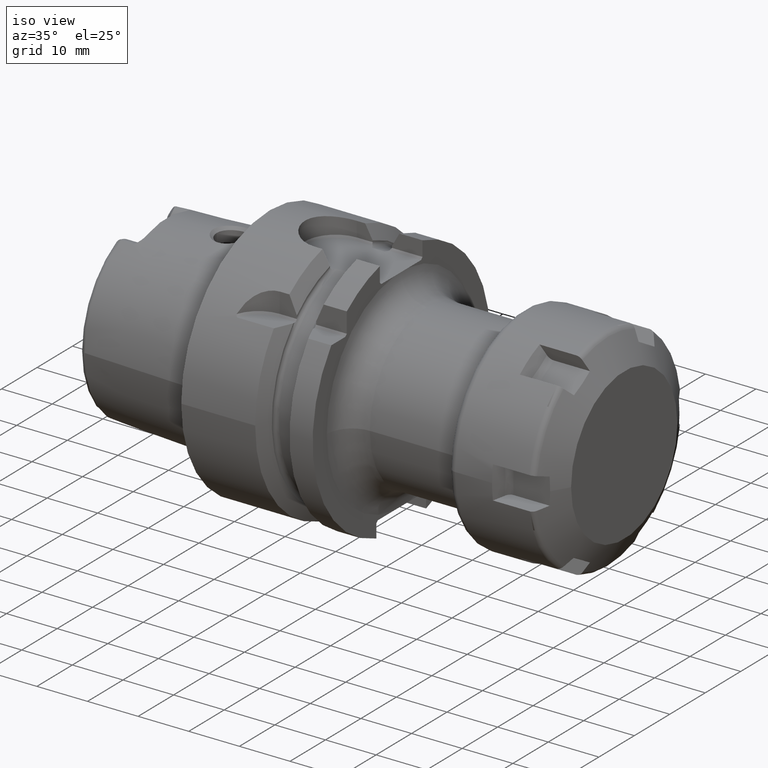
[diagram: clean part render]
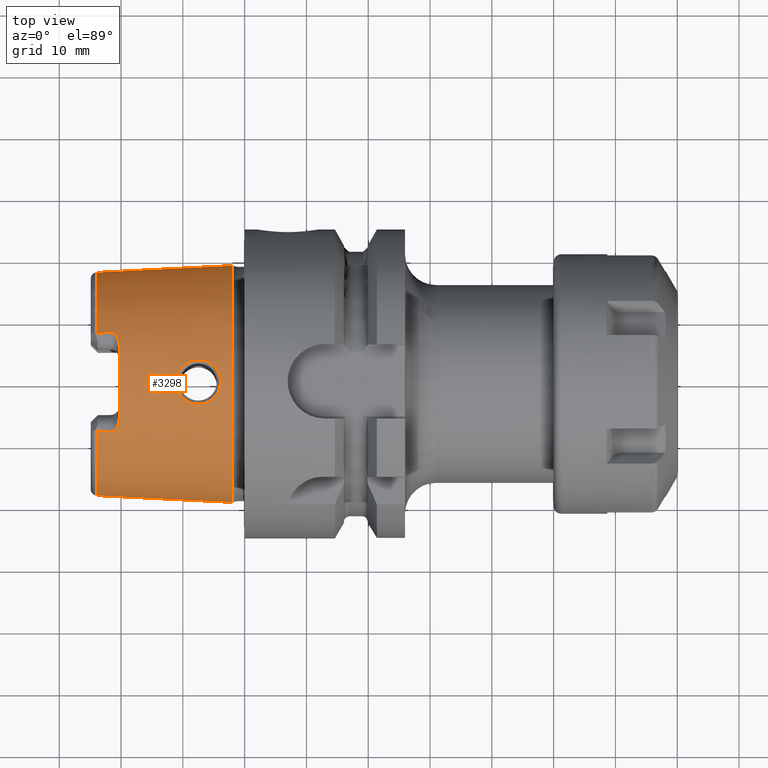
[diagram: tour spotlight — one face highlighted and labeled with its STEP entity id]
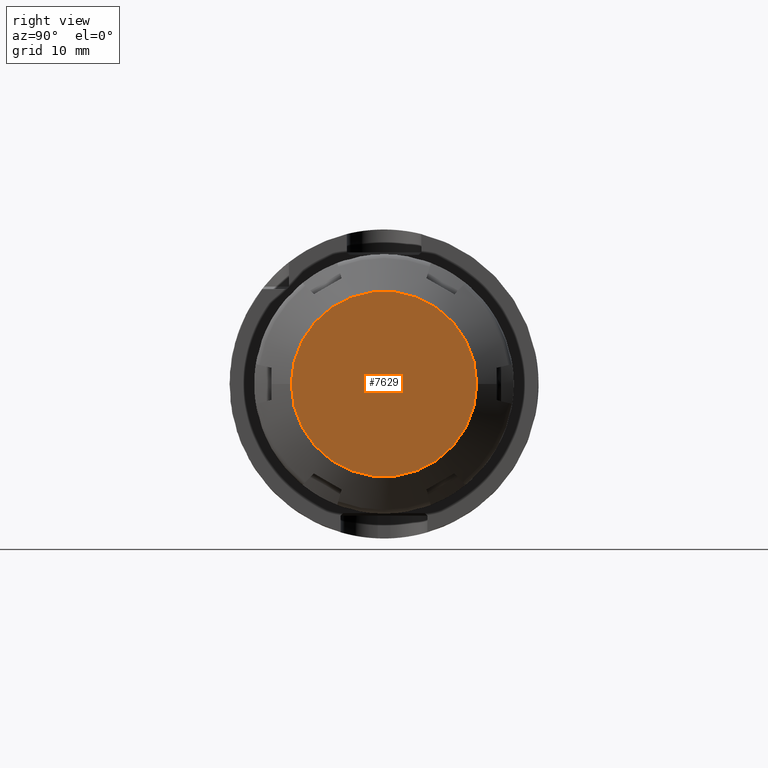
[diagram: tour spotlight — one face highlighted and labeled with its STEP entity id]
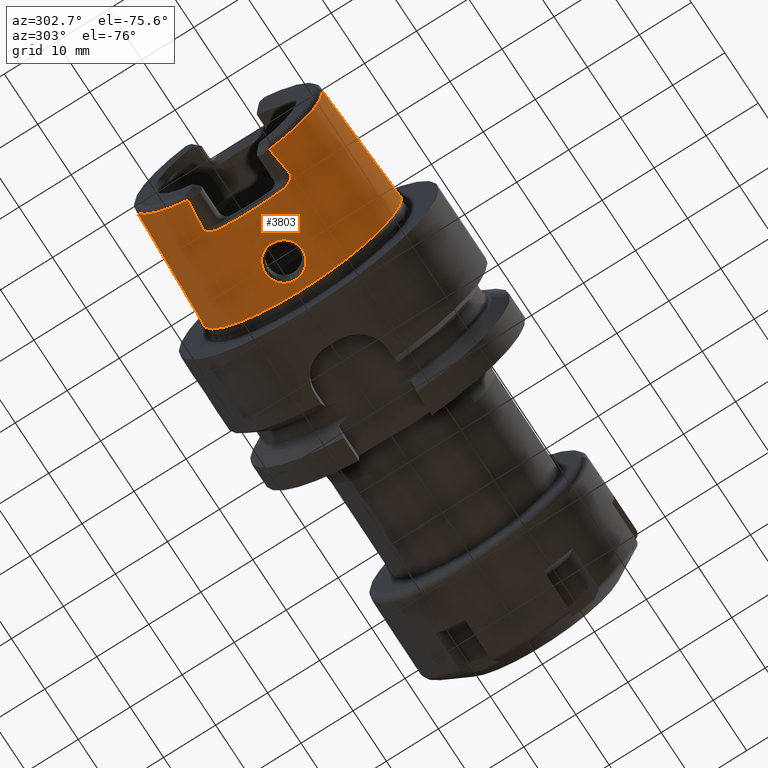
[diagram: tour spotlight — one face highlighted and labeled with its STEP entity id]
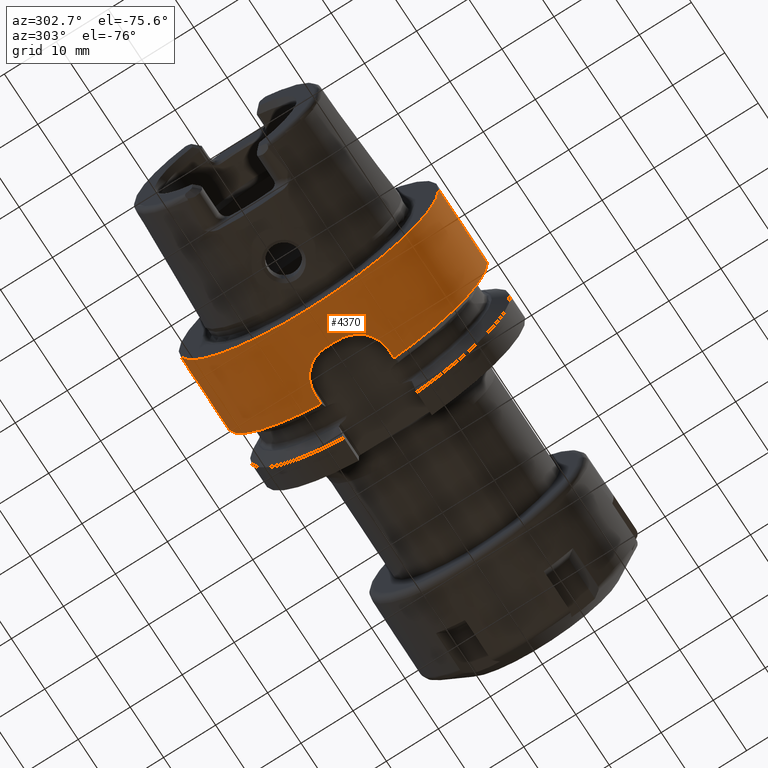
[diagram: tour spotlight — one face highlighted and labeled with its STEP entity id]
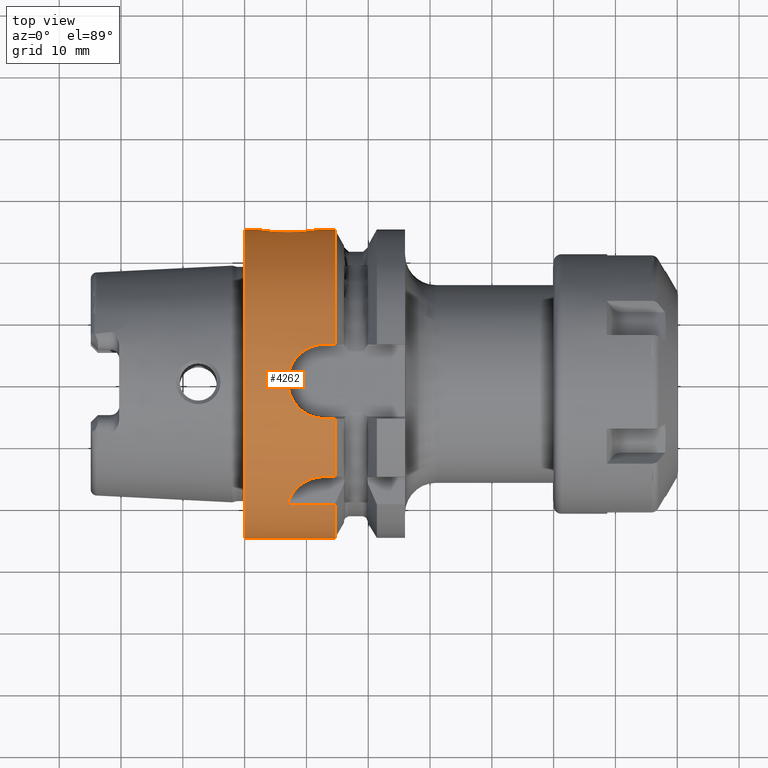
[diagram: tour spotlight — one face highlighted and labeled with its STEP entity id]
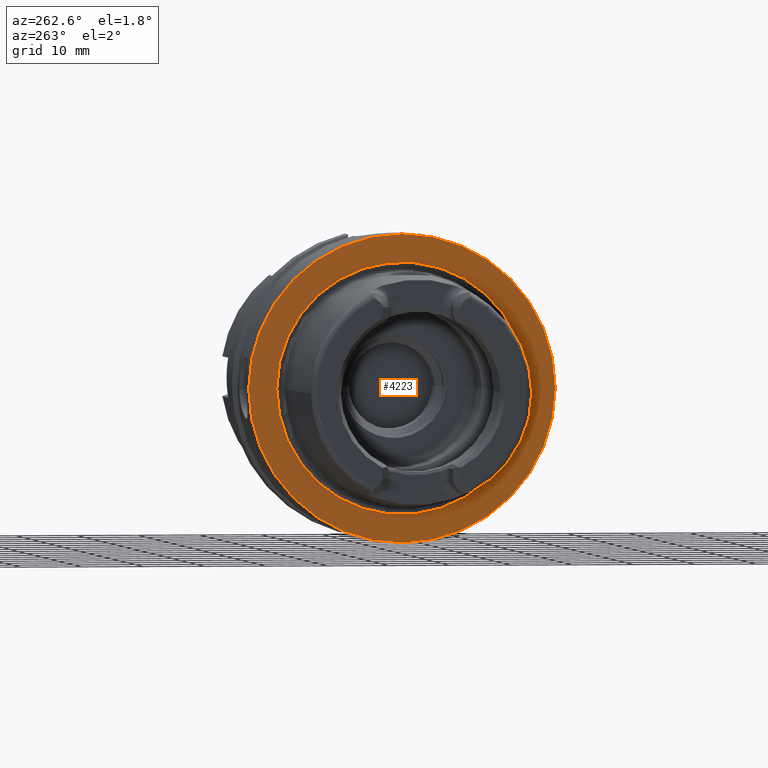
[diagram: tour spotlight — one face highlighted and labeled with its STEP entity id]
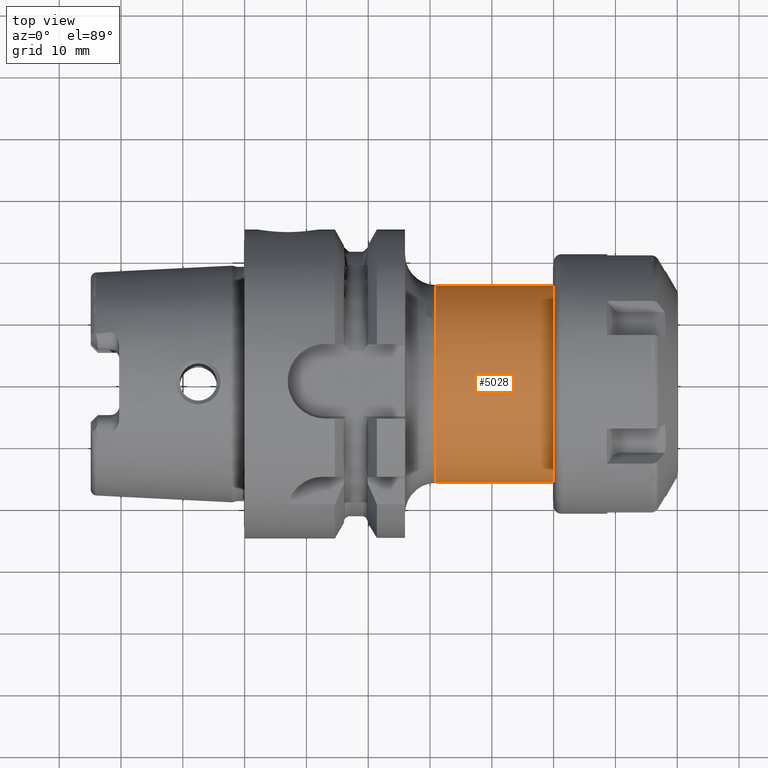
[diagram: tour spotlight — one face highlighted and labeled with its STEP entity id]
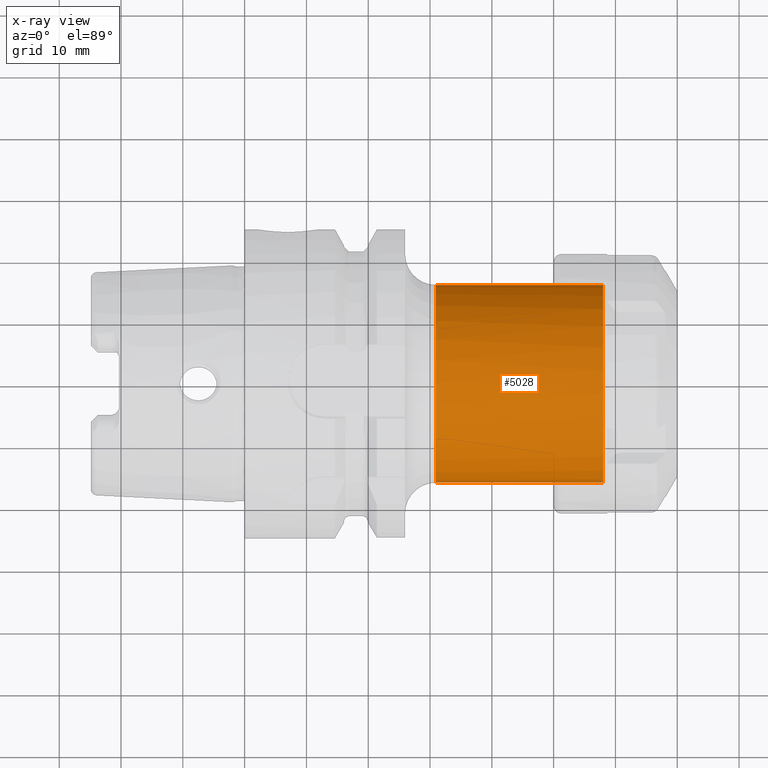
[diagram: x-ray of the same camera — body ghosted, this tour face saturated]
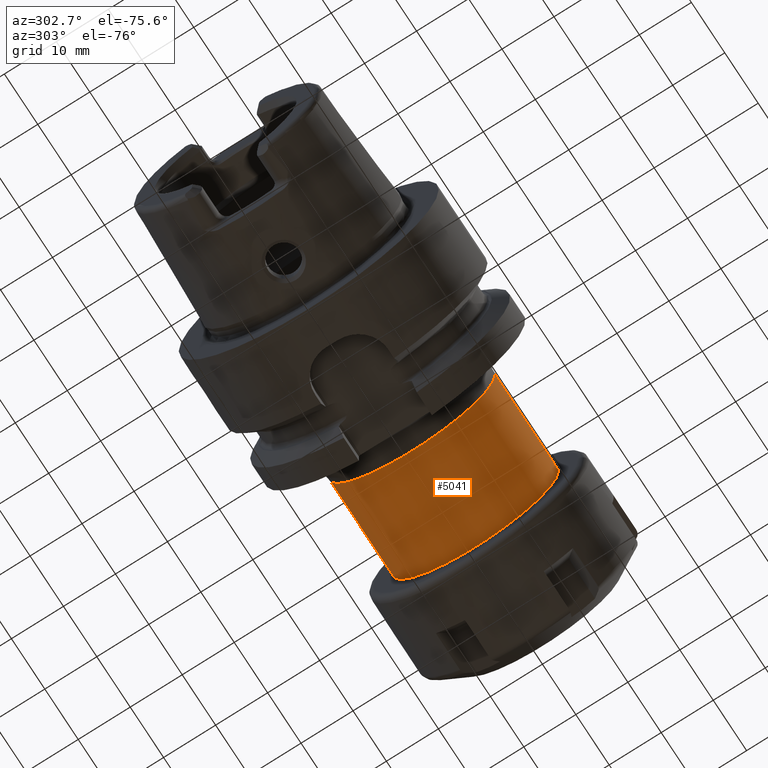
[diagram: tour spotlight — one face highlighted and labeled with its STEP entity id]
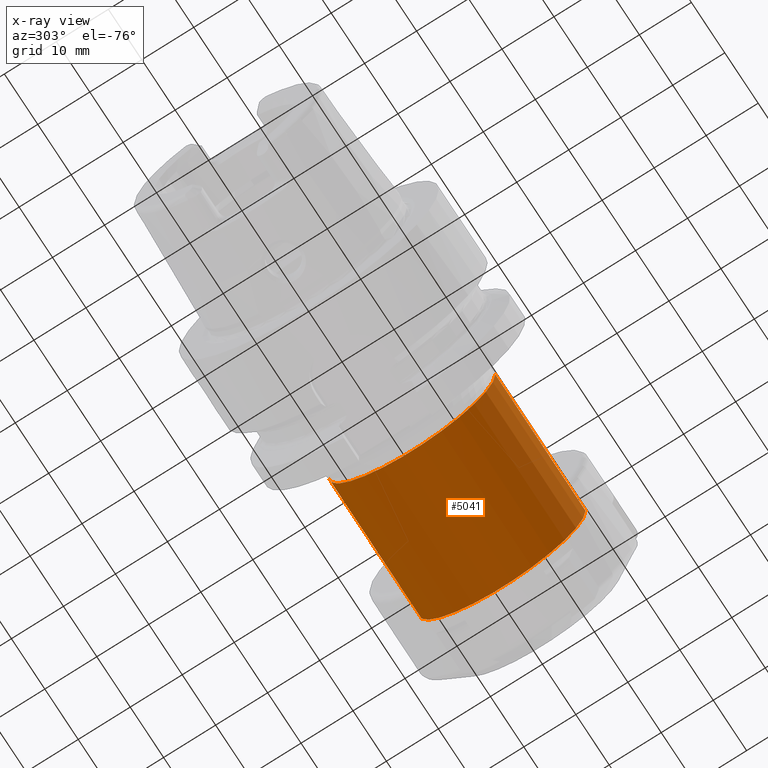
[diagram: x-ray of the same camera — body ghosted, this tour face saturated]
A machine part: a face-by-face anatomy tour. The part has 227 B-rep faces; the first image is the clean iso view, then the 8 largest visible faces are spotlighted one at a time (largest first), each with its STEP entity span.

Face 1 — top view, entity #3298. In plain terms, the highlighted conical surface has half-angle 2.868 deg.
Definition (entity closure, byte-faithful):
#2=CARTESIAN_POINT('',(-2.395003724237E1,-7.848512546022E0,1.626E1));
#3=CARTESIAN_POINT('',(-2.357924685714E1,-7.891247063705E0,1.626E1));
#4=CARTESIAN_POINT('',(-2.283344964494E1,-7.976635944030E0,1.626E1));
#5=CARTESIAN_POINT('',(-2.207922143332E1,-8.061880664518E0,1.626E1));
#6=CARTESIAN_POINT('',(-2.17E1,-8.104470797584E0,1.626E1));
#8=CARTESIAN_POINT('',(-2.03E1,0.E0,0.E0));
#9=DIRECTION('',(1.E0,0.E0,0.E0));
#10=DIRECTION('',(0.E0,3.252089046527E-1,9.456421988969E-1));
#11=AXIS2_PLACEMENT_3D('',#8,#9,#10);
#13=CARTESIAN_POINT('',(-2.17E1,8.104470797584E0,1.626E1));
#14=CARTESIAN_POINT('',(-2.207921342399E1,8.061881564041E0,1.626E1));
#15=CARTESIAN_POINT('',(-2.283343362880E1,7.976637765712E0,1.626E1));
#16=CARTESIAN_POINT('',(-2.357923885045E1,7.891247986496E0,1.626E1));
#17=CARTESIAN_POINT('',(-2.395003724237E1,7.848512546022E0,1.626E1));
#19=CARTESIAN_POINT('',(-2.E0,0.E0,0.E0));
#20=DIRECTION('',(1.E0,0.E0,0.E0));
#21=DIRECTION('',(0.E0,1.E0,0.E0));
#22=AXIS2_PLACEMENT_3D('',#19,#20,#21);
#24=CARTESIAN_POINT('',(-1.109929870960E1,-3.014221416256E-9,1.869887476944E1));
#25=CARTESIAN_POINT('',(-1.109945925242E1,1.886319535952E-1,1.869886672624E1));
#26=CARTESIAN_POINT('',(-1.107009168020E1,5.664763956957E-1,1.869480469033E1));
#27=CARTESIAN_POINT('',(-1.092852645341E1,1.148622081174E0,1.867514320096E1));
#28=CARTESIAN_POINT('',(-1.068761462296E1,1.704920402697E0,1.864430827966E1));
#29=CARTESIAN_POINT('',(-1.035800427398E1,2.210391705650E0,1.860721858945E1));
#30=CARTESIAN_POINT('',(-9.956571457299E0,2.646528342491E0,1.856998438485E1));
#31=CARTESIAN_POINT('',(-9.482180445587E0,3.015935220411E0,1.853715943967E1));
#32=CARTESIAN_POINT('',(-8.954999291132E0,3.300109899598E0,1.851503858938E1));
#33=CARTESIAN_POINT('',(-8.389140640557E0,3.493968846930E0,1.850796335816E1));
#34=CARTESIAN_POINT('',(-7.797320683708E0,3.593006921983E0,1.851902489885E1));
#35=CARTESIAN_POINT('',(-7.195102304437E0,3.593647232189E0,1.854964302437E1));
#36=CARTESIAN_POINT('',(-6.600491430740E0,3.495005174178E0,1.859898554839E1));
#37=CARTESIAN_POINT('',(-6.030596486868E0,3.299291684191E0,1.866403807124E1));
#38=CARTESIAN_POINT('',(-5.501482393751E0,3.011836541822E0,1.873990477193E1));
#39=CARTESIAN_POINT('',(-5.029104687073E0,2.639928583606E0,1.882027271501E1));
#40=CARTESIAN_POINT('',(-4.631634616367E0,2.203529810045E0,1.889690659120E1));
#41=CARTESIAN_POINT('',(-4.305482049942E0,1.697229296807E0,1.896603905152E1));
#42=CARTESIAN_POINT('',(-4.067927972751E0,1.141444662126E0,1.901987475357E1));
#43=CARTESIAN_POINT('',(-3.929055735054E0,5.612533791160E-1,1.905280029071E1));
#44=CARTESIAN_POINT('',(-3.900610911648E0,1.865123193107E-1,1.905953154444E1));
#45=CARTESIAN_POINT('',(-3.900703803433E0,4.688328467960E-10,1.905952689056E1));
#47=CARTESIAN_POINT('',(-3.900703803433E0,4.688328467960E-10,1.905952689056E1));
#48=CARTESIAN_POINT('',(-3.900565316566E0,-1.869068172543E-1,1.905953382875E1));
#49=CARTESIAN_POINT('',(-3.929209078756E0,-5.619643930347E-1,1.905275967237E1));
#50=CARTESIAN_POINT('',(-4.067587416071E0,-1.139939244924E0,1.901996042633E1));
#51=CARTESIAN_POINT('',(-4.304083353262E0,-1.694649477574E0,1.896633950966E1));
#52=CARTESIAN_POINT('',(-4.630377715431E0,-2.202039946174E0,1.889716591493E1));
#53=CARTESIAN_POINT('',(-5.030592742710E0,-2.641727212383E0,1.881996573115E1));
#54=CARTESIAN_POINT('',(-5.506115942833E0,-3.014998208087E0,1.873916244837E1));
#55=CARTESIAN_POINT('',(-6.036759347171E0,-3.302003787672E0,1.866323991975E1));
#56=CARTESIAN_POINT('',(-6.606224693834E0,-3.496380993107E0,1.859843104427E1));
#57=CARTESIAN_POINT('',(-7.200154597760E0,-3.594034785278E0,1.854930943768E1));
#58=CARTESIAN_POINT('',(-7.802229994140E0,-3.592594248023E0,1.851885498035E1));
#59=CARTESIAN_POINT('',(-8.394131860627E0,-3.492723564974E0,1.850794649148E1));
#60=CARTESIAN_POINT('',(-8.959854335096E0,-3.297955703516E0,1.851517847778E1));
#61=CARTESIAN_POINT('',(-9.485898814950E0,-3.013450655427E0,1.853737508929E1));
#62=CARTESIAN_POINT('',(-9.958289131427E0,-2.644672127726E0,1.857015107163E1));
#63=CARTESIAN_POINT('',(-1.035781579914E1,-2.210534337623E0,1.860719549656E1));
#64=CARTESIAN_POINT('',(-1.068684091883E1,-1.706221052324E0,1.864422260745E1));
#65=CARTESIAN_POINT('',(-1.092821591145E1,-1.149779213026E0,1.867509790374E1));
#66=CARTESIAN_POINT('',(-1.107015122039E1,-5.663437022187E-1,1.869481438399E1));
#67=CARTESIAN_POINT('',(-1.109940105467E1,-1.885312797170E-1,1.869886964195E1));
#68=CARTESIAN_POINT('',(-1.109929870960E1,-3.014221416256E-9,1.869887476944E1));
#254=CARTESIAN_POINT('',(-2.088194182380E1,7.65E0,1.652387464585E1));
#255=CARTESIAN_POINT('',(-2.078252967156E1,7.507241224245E0,1.659545558861E1));
#256=CARTESIAN_POINT('',(-2.061118229026E1,7.217898198343E0,1.673432166657E1));
#257=CARTESIAN_POINT('',(-2.042453343151E1,6.765088338183E0,1.693246351741E1));
#258=CARTESIAN_POINT('',(-2.032087894102E1,6.330896569896E0,1.710473583165E1));
#259=CARTESIAN_POINT('',(-2.03E1,6.061283482817E0,1.720184088309E1));
#260=CARTESIAN_POINT('',(-2.03E1,5.931150246788E0,1.724659405422E1));
#317=CARTESIAN_POINT('',(-2.395003724237E1,0.E0,0.E0));
#318=DIRECTION('',(1.E0,0.E0,0.E0));
#319=DIRECTION('',(0.E0,1.E0,0.E0));
#320=AXIS2_PLACEMENT_3D('',#317,#318,#319);
#391=CARTESIAN_POINT('',(-2.395003724237E1,0.E0,0.E0));
#392=DIRECTION('',(1.E0,0.E0,0.E0));
#393=DIRECTION('',(0.E0,-4.346977410045E-1,9.005764120637E-1));
#394=AXIS2_PLACEMENT_3D('',#391,#392,#393);
#557=DIRECTION('',(-9.987473526255E-1,5.003724236654E-2,0.E0));
#558=VECTOR('',#557,2.197756738445E1);
#559=CARTESIAN_POINT('',(-2.E0,-1.91548E1,0.E0));
#560=LINE('',#559,#558);
#566=DIRECTION('',(-9.987473526255E-1,-5.003724236654E-2,0.E0));
#567=VECTOR('',#566,2.197756738445E1);
#568=CARTESIAN_POINT('',(-2.E0,1.91548E1,0.E0));
#569=LINE('',#568,#567);
#2652=CARTESIAN_POINT('',(-2.03E1,-5.931150246788E0,1.724659405422E1));
#2653=CARTESIAN_POINT('',(-2.03E1,-6.061334007092E0,1.720182350766E1));
#2654=CARTESIAN_POINT('',(-2.032090311364E1,-6.331072330559E0,
1.710467013439E1));
#2655=CARTESIAN_POINT('',(-2.042460969072E1,-6.765396673643E0,
1.693234067442E1));
#2656=CARTESIAN_POINT('',(-2.061156183678E1,-7.218659036027E0,
1.673397288432E1));
#2657=CARTESIAN_POINT('',(-2.078273524221E1,-7.507536429743E0,
1.659530756908E1));
#2658=CARTESIAN_POINT('',(-2.088194182380E1,-7.65E0,1.652387464585E1));
#2730=CARTESIAN_POINT('',(-2.088194182380E1,-7.65E0,1.652387464585E1));
#2731=CARTESIAN_POINT('',(-2.092084236684E1,-7.705862324432E0,
1.649586461405E1));
#2732=CARTESIAN_POINT('',(-2.100216211286E1,-7.807981545915E0,
1.644339247740E1));
#2733=CARTESIAN_POINT('',(-2.113409150154E1,-7.931926358997E0,
1.637652980081E1));
#2734=CARTESIAN_POINT('',(-2.127636416926E1,-8.025677176369E0,
1.632276786529E1));
#2735=CARTESIAN_POINT('',(-2.142000730447E1,-8.084211699040E0,
1.628576763274E1));
#2736=CARTESIAN_POINT('',(-2.155951099500E1,-8.110794838366E0,
1.626471314411E1));
#2737=CARTESIAN_POINT('',(-2.165342169015E1,-8.109701979792E0,1.626E1));
#2738=CARTESIAN_POINT('',(-2.17E1,-8.104470797584E0,1.626E1));
#2748=CARTESIAN_POINT('',(-2.17E1,8.104470797584E0,1.626E1));
#2749=CARTESIAN_POINT('',(-2.164341871280E1,8.110825408214E0,1.626E1));
#2750=CARTESIAN_POINT('',(-2.152922643185E1,8.110130493423E0,1.626674474105E1));
#2751=CARTESIAN_POINT('',(-2.135380007883E1,8.063783507483E0,1.629963066121E1));
#2752=CARTESIAN_POINT('',(-2.118690630545E1,7.973411379162E0,1.635344174223E1));
#2753=CARTESIAN_POINT('',(-2.102599266022E1,7.836188133821E0,1.642872288676E1));
#2754=CARTESIAN_POINT('',(-2.092846952965E1,7.716815154647E0,1.649037273512E1));
#2755=CARTESIAN_POINT('',(-2.088194182380E1,7.65E0,1.652387464585E1));
#2773=CARTESIAN_POINT('',(-2.E0,1.91548E1,0.E0));
#2774=CARTESIAN_POINT('',(-2.E0,-1.91548E1,0.E0));
#2775=VERTEX_POINT('',#2773);
#2776=VERTEX_POINT('',#2774);
#2777=CARTESIAN_POINT('',(-2.395003724237E1,1.805510313416E1,0.E0));
#2778=VERTEX_POINT('',#2777);
#2779=CARTESIAN_POINT('',(-2.395003724237E1,-1.805510313416E1,0.E0));
#2780=VERTEX_POINT('',#2779);
#2793=CARTESIAN_POINT('',(-2.395003724237E1,7.848512546022E0,1.626E1));
#2794=VERTEX_POINT('',#2793);
#2795=CARTESIAN_POINT('',(-2.395003724237E1,-7.848512546022E0,1.626E1));
#2796=VERTEX_POINT('',#2795);
#2809=CARTESIAN_POINT('',(-2.03E1,5.931150246788E0,1.724659405422E1));
#2810=VERTEX_POINT('',#2809);
#2813=CARTESIAN_POINT('',(-2.17E1,8.104470797584E0,1.626E1));
#2814=VERTEX_POINT('',#2813);
#2815=CARTESIAN_POINT('',(-2.03E1,-5.931150246788E0,1.724659405422E1));
#2816=VERTEX_POINT('',#2815);
#2819=CARTESIAN_POINT('',(-2.17E1,-8.104470797584E0,1.626E1));
#2820=VERTEX_POINT('',#2819);
#2821=VERTEX_POINT('',#2755);
#2822=VERTEX_POINT('',#2730);
#3107=VERTEX_POINT('',#24);
#3108=VERTEX_POINT('',#45);
#3261=CARTESIAN_POINT('',(-1.297501862118E1,0.E0,0.E0));
#3262=DIRECTION('',(1.E0,0.E0,0.E0));
#3263=DIRECTION('',(0.E0,-1.E0,0.E0));
#3264=AXIS2_PLACEMENT_3D('',#3261,#3262,#3263);
#3265=CONICAL_SURFACE('',#3264,1.860495156708E1,2.868120487315E0);
#3267=ORIENTED_EDGE('',*,*,#3266,.T.);
#3269=ORIENTED_EDGE('',*,*,#3268,.F.);
#3271=ORIENTED_EDGE('',*,*,#3270,.F.);
#3273=ORIENTED_EDGE('',*,*,#3272,.F.);
#3275=ORIENTED_EDGE('',*,*,#3274,.F.);
#3277=ORIENTED_EDGE('',*,*,#3276,.F.);
#3279=ORIENTED_EDGE('',*,*,#3278,.T.);
#3281=ORIENTED_EDGE('',*,*,#3280,.F.);
#3283=ORIENTED_EDGE('',*,*,#3282,.F.);
#3285=ORIENTED_EDGE('',*,*,#3284,.T.);
#3287=ORIENTED_EDGE('',*,*,#3286,.T.);
#3289=ORIENTED_EDGE('',*,*,#3288,.F.);
#3290=EDGE_LOOP('',(#3267,#3269,#3271,#3273,#3275,#3277,#3279,#3281,#3283,#3285,
#3287,#3289));
#3291=FACE_OUTER_BOUND('',#3290,.F.);
#3293=ORIENTED_EDGE('',*,*,#3292,.F.);
#3295=ORIENTED_EDGE('',*,*,#3294,.F.);
#3296=EDGE_LOOP('',(#3293,#3295));
#3297=FACE_BOUND('',#3296,.F.);
#3298=ADVANCED_FACE('',(#3291,#3297),#3265,.T.);
#7=B_SPLINE_CURVE_WITH_KNOTS('',3,(#2,#3,#4,#5,#6),.UNSPECIFIED.,.F.,.F.,(4,1,
4),(0.E0,5.E-1,1.E0),.UNSPECIFIED.);
#12=CIRCLE('',#11,1.823797E1);
#18=B_SPLINE_CURVE_WITH_KNOTS('',3,(#13,#14,#15,#16,#17),.UNSPECIFIED.,.F.,.F.,(
4,1,4),(0.E0,5.E-1,1.E0),.UNSPECIFIED.);
#23=CIRCLE('',#22,1.91548E1);
#46=B_SPLINE_CURVE_WITH_KNOTS('',3,(#24,#25,#26,#27,#28,#29,#30,#31,#32,#33,#34,
#35,#36,#37,#38,#39,#40,#41,#42,#43,#44,#45),.UNSPECIFIED.,.F.,.F.,(4,1,1,1,1,1,
1,1,1,1,1,1,1,1,1,1,1,1,1,4),(0.E0,5.263157894737E-2,1.052631578947E-1,
1.578947368421E-1,2.105263157895E-1,2.631578947368E-1,3.157894736842E-1,
3.684210526316E-1,4.210526315789E-1,4.736842105263E-1,5.263157894737E-1,
5.789473684211E-1,6.315789473684E-1,6.842105263158E-1,7.368421052632E-1,
7.894736842105E-1,8.421052631579E-1,8.947368421053E-1,9.473684210526E-1,1.E0),
.UNSPECIFIED.);
#69=B_SPLINE_CURVE_WITH_KNOTS('',3,(#47,#48,#49,#50,#51,#52,#53,#54,#55,#56,#57,
#58,#59,#60,#61,#62,#63,#64,#65,#66,#67,#68),.UNSPECIFIED.,.F.,.F.,(4,1,1,1,1,1,
1,1,1,1,1,1,1,1,1,1,1,1,1,4),(0.E0,5.263157894737E-2,1.052631578947E-1,
1.578947368421E-1,2.105263157895E-1,2.631578947368E-1,3.157894736842E-1,
3.684210526316E-1,4.210526315789E-1,4.736842105263E-1,5.263157894737E-1,
5.789473684211E-1,6.315789473684E-1,6.842105263158E-1,7.368421052632E-1,
7.894736842105E-1,8.421052631579E-1,8.947368421053E-1,9.473684210526E-1,1.E0),
.UNSPECIFIED.);
#261=B_SPLINE_CURVE_WITH_KNOTS('',3,(#254,#255,#256,#257,#258,#259,#260),
.UNSPECIFIED.,.F.,.F.,(4,1,1,1,4),(0.E0,2.5E-1,5.E-1,7.5E-1,1.E0),
.UNSPECIFIED.);
#321=CIRCLE('',#320,1.805510313416E1);
#395=CIRCLE('',#394,1.805510313416E1);
#2659=B_SPLINE_CURVE_WITH_KNOTS('',3,(#2652,#2653,#2654,#2655,#2656,#2657,
#2658),.UNSPECIFIED.,.F.,.F.,(4,1,1,1,4),(0.E0,2.5E-1,5.E-1,7.5E-1,1.E0),
.UNSPECIFIED.);
#2739=B_SPLINE_CURVE_WITH_KNOTS('',3,(#2730,#2731,#2732,#2733,#2734,#2735,#2736,
#2737,#2738),.UNSPECIFIED.,.F.,.F.,(4,1,1,1,1,1,4),(0.E0,1.666666666667E-1,
3.333333333333E-1,5.E-1,6.666666666667E-1,8.333333333333E-1,1.E0),
.UNSPECIFIED.);
#2756=B_SPLINE_CURVE_WITH_KNOTS('',3,(#2748,#2749,#2750,#2751,#2752,#2753,#2754,
#2755),.UNSPECIFIED.,.F.,.F.,(4,1,1,1,1,4),(0.E0,2.E-1,4.E-1,6.E-1,8.E-1,1.E0),
.UNSPECIFIED.);
#3266=EDGE_CURVE('',#2796,#2820,#7,.T.);
#3268=EDGE_CURVE('',#2822,#2820,#2739,.T.);
#3270=EDGE_CURVE('',#2816,#2822,#2659,.T.);
#3272=EDGE_CURVE('',#2810,#2816,#12,.T.);
#3274=EDGE_CURVE('',#2821,#2810,#261,.T.);
#3276=EDGE_CURVE('',#2814,#2821,#2756,.T.);
#3278=EDGE_CURVE('',#2814,#2794,#18,.T.);
#3280=EDGE_CURVE('',#2778,#2794,#321,.T.);
#3282=EDGE_CURVE('',#2775,#2778,#569,.T.);
#3284=EDGE_CURVE('',#2775,#2776,#23,.T.);
#3286=EDGE_CURVE('',#2776,#2780,#560,.T.);
#3288=EDGE_CURVE('',#2796,#2780,#395,.T.);
#3292=EDGE_CURVE('',#3107,#3108,#46,.T.);
#3294=EDGE_CURVE('',#3108,#3107,#69,.T.);

Face 2 — right view, entity #7629. In plain terms, the highlighted planar face has unit normal (1, 0, 0).
Definition (entity closure, byte-faithful):
#6784=CARTESIAN_POINT('',(2.E1,-2.266909448450E-14,0.E0));
#6785=DIRECTION('',(-1.E0,0.E0,0.E0));
#6786=DIRECTION('',(0.E0,1.E0,0.E0));
#6787=AXIS2_PLACEMENT_3D('',#6784,#6785,#6786);
#7106=CARTESIAN_POINT('',(2.E1,-2.266909448450E-14,0.E0));
#7107=DIRECTION('',(1.E0,0.E0,0.E0));
#7108=DIRECTION('',(0.E0,1.E0,0.E0));
#7109=AXIS2_PLACEMENT_3D('',#7106,#7107,#7108);
#7516=CARTESIAN_POINT('',(2.E1,1.5E1,0.E0));
#7517=CARTESIAN_POINT('',(2.E1,-1.5E1,0.E0));
#7518=VERTEX_POINT('',#7516);
#7519=VERTEX_POINT('',#7517);
#7618=CARTESIAN_POINT('',(2.E1,-2.266909448450E-14,0.E0));
#7619=DIRECTION('',(1.E0,0.E0,0.E0));
#7620=DIRECTION('',(0.E0,-1.E0,0.E0));
#7621=AXIS2_PLACEMENT_3D('',#7618,#7619,#7620);
#7622=PLANE('',#7621);
#7624=ORIENTED_EDGE('',*,*,#7623,.T.);
#7626=ORIENTED_EDGE('',*,*,#7625,.F.);
#7627=EDGE_LOOP('',(#7624,#7626));
#7628=FACE_OUTER_BOUND('',#7627,.F.);
#7629=ADVANCED_FACE('',(#7628),#7622,.T.);
#6788=CIRCLE('',#6787,1.5E1);
#7110=CIRCLE('',#7109,1.5E1);
#7623=EDGE_CURVE('',#7518,#7519,#6788,.T.);
#7625=EDGE_CURVE('',#7518,#7519,#7110,.T.);

Face 3 — auxiliary view, entity #3803. In plain terms, the highlighted conical surface has half-angle 2.868 deg.
Definition (entity closure, byte-faithful):
#312=CARTESIAN_POINT('',(-2.395003724237E1,0.E0,0.E0));
#313=DIRECTION('',(-1.E0,0.E0,0.E0));
#314=DIRECTION('',(0.E0,1.E0,0.E0));
#315=AXIS2_PLACEMENT_3D('',#312,#313,#314);
#396=CARTESIAN_POINT('',(-2.395003724237E1,0.E0,0.E0));
#397=DIRECTION('',(-1.E0,0.E0,0.E0));
#398=DIRECTION('',(0.E0,-4.346977410045E-1,-9.005764120637E-1));
#399=AXIS2_PLACEMENT_3D('',#396,#397,#398);
#538=CARTESIAN_POINT('',(-2.395003724237E1,7.848512546022E0,-1.626E1));
#539=CARTESIAN_POINT('',(-2.338687062145E1,7.913418905191E0,-1.626E1));
#540=CARTESIAN_POINT('',(-2.225079278786E1,8.043048814131E0,-1.626E1));
#541=CARTESIAN_POINT('',(-2.051761809462E1,8.237010561152E0,-1.626E1));
#542=CARTESIAN_POINT('',(-1.934246983352E1,8.366084019877E0,-1.626E1));
#543=CARTESIAN_POINT('',(-1.875E1,8.430570510981E0,-1.626E1));
#545=CARTESIAN_POINT('',(-1.735E1,0.E0,0.E0));
#546=DIRECTION('',(1.E0,0.E0,0.E0));
#547=DIRECTION('',(0.E0,-3.329198137635E-1,-9.429551408225E-1));
#548=AXIS2_PLACEMENT_3D('',#545,#546,#547);
#550=CARTESIAN_POINT('',(-1.875E1,-8.430570510981E0,-1.626E1));
#551=CARTESIAN_POINT('',(-1.934242285398E1,-8.366089133295E0,-1.626E1));
#552=CARTESIAN_POINT('',(-2.051750851388E1,-8.237022675572E0,-1.626E1));
#553=CARTESIAN_POINT('',(-2.225068477773E1,-8.043061050882E0,-1.626E1));
#554=CARTESIAN_POINT('',(-2.338682434939E1,-7.913424238162E0,-1.626E1));
#555=CARTESIAN_POINT('',(-2.395003724237E1,-7.848512546022E0,-1.626E1));
#557=DIRECTION('',(-9.987473526255E-1,5.003724236654E-2,0.E0));
#558=VECTOR('',#557,2.197756738445E1);
#559=CARTESIAN_POINT('',(-2.E0,-1.91548E1,0.E0));
#560=LINE('',#559,#558);
#561=CARTESIAN_POINT('',(-2.E0,0.E0,0.E0));
#562=DIRECTION('',(1.E0,0.E0,0.E0));
#563=DIRECTION('',(0.E0,-1.E0,0.E0));
#564=AXIS2_PLACEMENT_3D('',#561,#562,#563);
#566=DIRECTION('',(-9.987473526255E-1,-5.003724236654E-2,0.E0));
#567=VECTOR('',#566,2.197756738445E1);
#568=CARTESIAN_POINT('',(-2.E0,1.91548E1,0.E0));
#569=LINE('',#568,#567);
#570=CARTESIAN_POINT('',(-3.900704806678E0,1.472613263143E-9,
-1.905952784495E1));
#571=CARTESIAN_POINT('',(-3.900615166046E0,1.866673835517E-1,
-1.905953233594E1));
#572=CARTESIAN_POINT('',(-3.929106772139E0,5.615791165736E-1,
-1.905278636549E1));
#573=CARTESIAN_POINT('',(-4.067935659743E0,1.141371115647E0,-1.901987415608E1));
#574=CARTESIAN_POINT('',(-4.305275803453E0,1.696812277266E0,-1.896608466769E1));
#575=CARTESIAN_POINT('',(-4.631310915756E0,2.203141977498E0,-1.889697175416E1));
#576=CARTESIAN_POINT('',(-5.029325758557E0,2.640208284096E0,-1.882022687283E1));
#577=CARTESIAN_POINT('',(-5.502335557806E0,3.012425493173E0,-1.873976705482E1));
#578=CARTESIAN_POINT('',(-6.031693100467E0,3.299767302462E0,-1.866389707735E1));
#579=CARTESIAN_POINT('',(-6.601378280360E0,3.495209727250E0,-1.859890123537E1));
#580=CARTESIAN_POINT('',(-7.195766079017E0,3.593693219387E0,-1.854960016146E1));
#581=CARTESIAN_POINT('',(-7.797898207891E0,3.592954873520E0,-1.851900560565E1));
#582=CARTESIAN_POINT('',(-8.389607514507E0,3.493843645386E0,-1.850796332572E1));
#583=CARTESIAN_POINT('',(-8.955308440714E0,3.299965756509E0,-1.851504857574E1));
#584=CARTESIAN_POINT('',(-9.482323168774E0,3.015829343336E0,-1.853716886443E1));
#585=CARTESIAN_POINT('',(-9.956592743679E0,2.646507749701E0,-1.856998619870E1));
#586=CARTESIAN_POINT('',(-1.035805024007E1,2.210330095003E0,-1.860722351037E1));
#587=CARTESIAN_POINT('',(-1.068760086949E1,1.704936631005E0,-1.864430676429E1));
#588=CARTESIAN_POINT('',(-1.092850760626E1,1.148675507148E0,-1.867514058279E1));
#589=CARTESIAN_POINT('',(-1.107008421852E1,5.665302835740E-1,
-1.869480413424E1));
#590=CARTESIAN_POINT('',(-1.109946006146E1,1.886547531004E-1,
-1.869886562485E1));
#591=CARTESIAN_POINT('',(-1.109929976897E1,-1.694149622479E-9,
-1.869887365550E1));
#593=CARTESIAN_POINT('',(-1.109929976897E1,-1.694149622479E-9,
-1.869887365550E1));
#594=CARTESIAN_POINT('',(-1.109940582719E1,-1.883770157265E-1,
-1.869886834198E1));
#595=CARTESIAN_POINT('',(-1.107020313796E1,-5.660200308025E-1,
-1.869482353925E1));
#596=CARTESIAN_POINT('',(-1.092821837193E1,-1.149870271214E0,
-1.867509697756E1));
#597=CARTESIAN_POINT('',(-1.068662582479E1,-1.706645278667E0,
-1.864419634576E1));
#598=CARTESIAN_POINT('',(-1.035751606465E1,-2.210879090519E0,
-1.860716549548E1));
#599=CARTESIAN_POINT('',(-9.958609867881E0,-2.644300173651E0,
-1.857018334682E1));
#600=CARTESIAN_POINT('',(-9.486840676270E0,-3.012811876655E0,
-1.853743127057E1));
#601=CARTESIAN_POINT('',(-8.960996126324E0,-3.297462762815E0,
-1.851520931171E1));
#602=CARTESIAN_POINT('',(-8.395045625957E0,-3.492509839186E0,
-1.850794085366E1));
#603=CARTESIAN_POINT('',(-7.802939202272E0,-3.592541146068E0,
-1.851882915075E1));
#604=CARTESIAN_POINT('',(-7.200782399978E0,-3.594089182457E0,
-1.854926675795E1));
#605=CARTESIAN_POINT('',(-6.606734575569E0,-3.496516221273E0,
-1.859837946641E1));
#606=CARTESIAN_POINT('',(-6.037104456337E0,-3.302164399968E0,
-1.866319393274E1));
#607=CARTESIAN_POINT('',(-5.506285006692E0,-3.015121680460E0,
-1.873913453288E1));
#608=CARTESIAN_POINT('',(-5.030644910532E0,-2.641776999533E0,
-1.881995613891E1));
#609=CARTESIAN_POINT('',(-4.630438770706E0,-2.202123065507E0,
-1.889715328522E1));
#610=CARTESIAN_POINT('',(-4.304079615875E0,-1.694652591687E0,
-1.896634017977E1));
#611=CARTESIAN_POINT('',(-4.067571850522E0,-1.139896759683E0,
-1.901996411725E1));
#612=CARTESIAN_POINT('',(-3.929201891757E0,-5.619134502676E-1,
-1.905276092132E1));
#613=CARTESIAN_POINT('',(-3.900566078900E0,-1.868846488735E-1,
-1.905953479521E1));
#614=CARTESIAN_POINT('',(-3.900704806678E0,1.472613263143E-9,
-1.905952784495E1));
#628=CARTESIAN_POINT('',(-1.773329688134E1,7.65E0,-1.669754752403E1));
#629=CARTESIAN_POINT('',(-1.776947247066E1,7.729059385556E0,-1.665933282211E1));
#630=CARTESIAN_POINT('',(-1.784645950292E1,7.875588577417E0,-1.658658226692E1));
#631=CARTESIAN_POINT('',(-1.797598596456E1,8.061319539841E0,-1.648972669395E1));
#632=CARTESIAN_POINT('',(-1.811580589891E1,8.210035689763E0,-1.640822924880E1));
#633=CARTESIAN_POINT('',(-1.827179872439E1,8.326706598234E0,-1.634045416525E1));
#634=CARTESIAN_POINT('',(-1.843478541104E1,8.401925448772E0,-1.629262972013E1));
#635=CARTESIAN_POINT('',(-1.859282796322E1,8.436389852398E0,-1.626585486387E1));
#636=CARTESIAN_POINT('',(-1.869807882458E1,8.436221793506E0,-1.626E1));
#637=CARTESIAN_POINT('',(-1.875E1,8.430570510981E0,-1.626E1));
#639=CARTESIAN_POINT('',(-1.735E1,6.120985459700E0,-1.733695162471E1));
#640=CARTESIAN_POINT('',(-1.735E1,6.272392467939E0,-1.728349585486E1));
#641=CARTESIAN_POINT('',(-1.737593166382E1,6.588248477591E0,-1.716616239276E1));
#642=CARTESIAN_POINT('',(-1.750204876912E1,7.100128748192E0,-1.695449641606E1));
#643=CARTESIAN_POINT('',(-1.764761568591E1,7.462749348644E0,-1.678805831888E1));
#644=CARTESIAN_POINT('',(-1.773329688134E1,7.65E0,-1.669754752403E1));
#760=CARTESIAN_POINT('',(-1.773329688134E1,-7.65E0,-1.669754752403E1));
#761=CARTESIAN_POINT('',(-1.764762892058E1,-7.462778272151E0,
-1.678804433821E1));
#762=CARTESIAN_POINT('',(-1.750207175517E1,-7.100199843490E0,
-1.695446553267E1));
#763=CARTESIAN_POINT('',(-1.737593141247E1,-6.588263301611E0,
-1.716615729294E1));
#764=CARTESIAN_POINT('',(-1.735E1,-6.272398566500E0,-1.728349370170E1));
#765=CARTESIAN_POINT('',(-1.735E1,-6.120985459700E0,-1.733695162471E1));
#772=CARTESIAN_POINT('',(-1.875E1,-8.430570510981E0,-1.626E1));
#773=CARTESIAN_POINT('',(-1.869711929168E1,-8.436326232426E0,-1.626E1));
#774=CARTESIAN_POINT('',(-1.859025227455E1,-8.436560240682E0,
-1.626591318715E1));
#775=CARTESIAN_POINT('',(-1.842603308462E1,-8.399032357197E0,
-1.629461831565E1));
#776=CARTESIAN_POINT('',(-1.826748973866E1,-8.323624837312E0,
-1.634226240332E1));
#777=CARTESIAN_POINT('',(-1.811421720143E1,-8.208556422520E0,
-1.640905691628E1));
#778=CARTESIAN_POINT('',(-1.797414400575E1,-8.059049664069E0,
-1.649094138579E1));
#779=CARTESIAN_POINT('',(-1.784544419305E1,-7.873759725462E0,
-1.658750118538E1));
#780=CARTESIAN_POINT('',(-1.776912464093E1,-7.728299226425E0,
-1.665970025798E1));
#781=CARTESIAN_POINT('',(-1.773329688134E1,-7.65E0,-1.669754752403E1));
#2773=CARTESIAN_POINT('',(-2.E0,1.91548E1,0.E0));
#2774=CARTESIAN_POINT('',(-2.E0,-1.91548E1,0.E0));
#2775=VERTEX_POINT('',#2773);
#2776=VERTEX_POINT('',#2774);
#2777=CARTESIAN_POINT('',(-2.395003724237E1,1.805510313416E1,0.E0));
#2778=VERTEX_POINT('',#2777);
#2779=CARTESIAN_POINT('',(-2.395003724237E1,-1.805510313416E1,0.E0));
#2780=VERTEX_POINT('',#2779);
#2797=CARTESIAN_POINT('',(-2.395003724237E1,7.848512546022E0,-1.626E1));
#2798=VERTEX_POINT('',#2797);
#2799=CARTESIAN_POINT('',(-2.395003724237E1,-7.848512546022E0,-1.626E1));
#2800=VERTEX_POINT('',#2799);
#2824=CARTESIAN_POINT('',(-1.773329688134E1,-7.65E0,-1.669754752403E1));
#2826=VERTEX_POINT('',#2824);
#2827=VERTEX_POINT('',#765);
#2828=VERTEX_POINT('',#639);
#2829=VERTEX_POINT('',#644);
#2840=CARTESIAN_POINT('',(-1.875E1,-8.430570510981E0,-1.626E1));
#2841=VERTEX_POINT('',#2840);
#2842=CARTESIAN_POINT('',(-1.875E1,8.430570510981E0,-1.626E1));
#2843=VERTEX_POINT('',#2842);
#3115=VERTEX_POINT('',#570);
#3116=VERTEX_POINT('',#591);
#3771=CARTESIAN_POINT('',(-1.297501862118E1,0.E0,0.E0));
#3772=DIRECTION('',(1.E0,0.E0,0.E0));
#3773=DIRECTION('',(0.E0,-1.E0,0.E0));
#3774=AXIS2_PLACEMENT_3D('',#3771,#3772,#3773);
#3775=CONICAL_SURFACE('',#3774,1.860495156708E1,2.868120487315E0);
#3777=ORIENTED_EDGE('',*,*,#3776,.T.);
#3779=ORIENTED_EDGE('',*,*,#3778,.F.);
#3781=ORIENTED_EDGE('',*,*,#3780,.F.);
#3783=ORIENTED_EDGE('',*,*,#3782,.F.);
#3785=ORIENTED_EDGE('',*,*,#3784,.F.);
#3787=ORIENTED_EDGE('',*,*,#3786,.F.);
#3788=ORIENTED_EDGE('',*,*,#3762,.T.);
#3789=ORIENTED_EDGE('',*,*,#3589,.T.);
#3790=ORIENTED_EDGE('',*,*,#3286,.F.);
#3792=ORIENTED_EDGE('',*,*,#3791,.T.);
#3793=ORIENTED_EDGE('',*,*,#3282,.T.);
#3794=ORIENTED_EDGE('',*,*,#3568,.T.);
#3795=EDGE_LOOP('',(#3777,#3779,#3781,#3783,#3785,#3787,#3788,#3789,#3790,#3792,
#3793,#3794));
#3796=FACE_OUTER_BOUND('',#3795,.F.);
#3798=ORIENTED_EDGE('',*,*,#3797,.F.);
#3800=ORIENTED_EDGE('',*,*,#3799,.F.);
#3801=EDGE_LOOP('',(#3798,#3800));
#3802=FACE_BOUND('',#3801,.F.);
#3803=ADVANCED_FACE('',(#3796,#3802),#3775,.T.);
#316=CIRCLE('',#315,1.805510313416E1);
#400=CIRCLE('',#399,1.805510313416E1);
#544=B_SPLINE_CURVE_WITH_KNOTS('',3,(#538,#539,#540,#541,#542,#543),
.UNSPECIFIED.,.F.,.F.,(4,1,1,4),(0.E0,3.333333333333E-1,6.666666666667E-1,1.E0),
.UNSPECIFIED.);
#549=CIRCLE('',#548,1.8385765E1);
#556=B_SPLINE_CURVE_WITH_KNOTS('',3,(#550,#551,#552,#553,#554,#555),
.UNSPECIFIED.,.F.,.F.,(4,1,1,4),(0.E0,3.333333333333E-1,6.666666666667E-1,1.E0),
.UNSPECIFIED.);
#565=CIRCLE('',#564,1.91548E1);
#592=B_SPLINE_CURVE_WITH_KNOTS('',3,(#570,#571,#572,#573,#574,#575,#576,#577,
#578,#579,#580,#581,#582,#583,#584,#585,#586,#587,#588,#589,#590,#591),
.UNSPECIFIED.,.F.,.F.,(4,1,1,1,1,1,1,1,1,1,1,1,1,1,1,1,1,1,1,4),(0.E0,
5.263157894737E-2,1.052631578947E-1,1.578947368421E-1,2.105263157895E-1,
2.631578947368E-1,3.157894736842E-1,3.684210526316E-1,4.210526315789E-1,
4.736842105263E-1,5.263157894737E-1,5.789473684211E-1,6.315789473684E-1,
6.842105263158E-1,7.368421052632E-1,7.894736842105E-1,8.421052631579E-1,
8.947368421053E-1,9.473684210526E-1,1.E0),.UNSPECIFIED.);
#615=B_SPLINE_CURVE_WITH_KNOTS('',3,(#593,#594,#595,#596,#597,#598,#599,#600,
#601,#602,#603,#604,#605,#606,#607,#608,#609,#610,#611,#612,#613,#614),
.UNSPECIFIED.,.F.,.F.,(4,1,1,1,1,1,1,1,1,1,1,1,1,1,1,1,1,1,1,4),(0.E0,
5.263157894737E-2,1.052631578947E-1,1.578947368421E-1,2.105263157895E-1,
2.631578947368E-1,3.157894736842E-1,3.684210526316E-1,4.210526315789E-1,
4.736842105263E-1,5.263157894737E-1,5.789473684211E-1,6.315789473684E-1,
6.842105263158E-1,7.368421052632E-1,7.894736842105E-1,8.421052631579E-1,
8.947368421053E-1,9.473684210526E-1,1.E0),.UNSPECIFIED.);
#638=B_SPLINE_CURVE_WITH_KNOTS('',3,(#628,#629,#630,#631,#632,#633,#634,#635,
#636,#637),.UNSPECIFIED.,.F.,.F.,(4,1,1,1,1,1,1,4),(0.E0,1.428571428571E-1,
2.857142857143E-1,4.285714285714E-1,5.714285714286E-1,7.142857142857E-1,
8.571428571429E-1,1.E0),.UNSPECIFIED.);
#645=B_SPLINE_CURVE_WITH_KNOTS('',3,(#639,#640,#641,#642,#643,#644),
.UNSPECIFIED.,.F.,.F.,(4,1,1,4),(0.E0,3.333333333333E-1,6.666666666667E-1,1.E0),
.UNSPECIFIED.);
#766=B_SPLINE_CURVE_WITH_KNOTS('',3,(#760,#761,#762,#763,#764,#765),
.UNSPECIFIED.,.F.,.F.,(4,1,1,4),(0.E0,3.333333333333E-1,6.666666666667E-1,1.E0),
.UNSPECIFIED.);
#782=B_SPLINE_CURVE_WITH_KNOTS('',3,(#772,#773,#774,#775,#776,#777,#778,#779,
#780,#781),.UNSPECIFIED.,.F.,.F.,(4,1,1,1,1,1,1,4),(0.E0,1.428571428571E-1,
2.857142857143E-1,4.285714285714E-1,5.714285714286E-1,7.142857142857E-1,
8.571428571429E-1,1.E0),.UNSPECIFIED.);
#3282=EDGE_CURVE('',#2775,#2778,#569,.T.);
#3286=EDGE_CURVE('',#2776,#2780,#560,.T.);
#3568=EDGE_CURVE('',#2778,#2798,#316,.T.);
#3589=EDGE_CURVE('',#2800,#2780,#400,.T.);
#3762=EDGE_CURVE('',#2841,#2800,#556,.T.);
#3776=EDGE_CURVE('',#2798,#2843,#544,.T.);
#3778=EDGE_CURVE('',#2829,#2843,#638,.T.);
#3780=EDGE_CURVE('',#2828,#2829,#645,.T.);
#3782=EDGE_CURVE('',#2827,#2828,#549,.T.);
#3784=EDGE_CURVE('',#2826,#2827,#766,.T.);
#3786=EDGE_CURVE('',#2841,#2826,#782,.T.);
#3791=EDGE_CURVE('',#2776,#2775,#565,.T.);
#3797=EDGE_CURVE('',#3115,#3116,#592,.T.);
#3799=EDGE_CURVE('',#3116,#3115,#615,.T.);

Face 4 — auxiliary view, entity #4370. In plain terms, the highlighted cylindrical surface (partial cylindrical patch) has radius 25 mm, axis along (1, 0, 0).
Definition (entity closure, byte-faithful):
#872=CARTESIAN_POINT('',(0.E0,0.E0,0.E0));
#873=DIRECTION('',(-1.E0,0.E0,0.E0));
#874=DIRECTION('',(0.E0,1.E0,0.E0));
#875=AXIS2_PLACEMENT_3D('',#872,#873,#874);
#887=CARTESIAN_POINT('',(1.2E1,2.5E1,1.526170039412E-14));
#991=CARTESIAN_POINT('',(2.E0,2.5E1,2.455170019084E-14));
#1055=CARTESIAN_POINT('',(7.E0,2.449489742783E1,-5.E0));
#1056=CARTESIAN_POINT('',(7.264295270777E0,2.449489742783E1,-5.E0));
#1057=CARTESIAN_POINT('',(7.785013842827E0,2.450338614871E1,-4.958680477076E0));
#1058=CARTESIAN_POINT('',(8.551210806569E0,2.454016613099E1,-4.774925055815E0));
#1059=CARTESIAN_POINT('',(9.276331029941E0,2.459715345759E1,-4.474718642588E0));
#1060=CARTESIAN_POINT('',(9.947317646856E0,2.466886502270E1,-4.064472478945E0));
#1061=CARTESIAN_POINT('',(1.054794480038E1,2.474845595662E1,-3.552427628344E0));
#1062=CARTESIAN_POINT('',(1.106191181344E1,2.482799357997E1,-2.951208210709E0));
#1063=CARTESIAN_POINT('',(1.147560324911E1,2.489960101192E1,-2.275353587749E0));
#1064=CARTESIAN_POINT('',(1.177689611261E1,2.495597381028E1,-1.545432577730E0));
#1065=CARTESIAN_POINT('',(1.195928719975E1,2.499180982278E1,
-7.801844541827E-1));
#1066=CARTESIAN_POINT('',(1.2E1,2.5E1,-2.621404929664E-1));
#1067=CARTESIAN_POINT('',(1.2E1,2.5E1,1.526170039412E-14));
#1069=CARTESIAN_POINT('',(2.E0,2.5E1,2.455170019084E-14));
#1070=CARTESIAN_POINT('',(2.E0,2.5E1,-2.621074782775E-1));
#1071=CARTESIAN_POINT('',(2.040697717752E0,2.499181267397E1,
-7.801110060270E-1));
#1072=CARTESIAN_POINT('',(2.223109513093E0,2.495597315332E1,-1.545439830533E0));
#1073=CARTESIAN_POINT('',(2.524386263003E0,2.489960137339E1,-2.275388546126E0));
#1074=CARTESIAN_POINT('',(2.938446508236E0,2.482793515031E1,-2.951694325911E0));
#1075=CARTESIAN_POINT('',(3.451983157137E0,2.474846923073E1,-3.552307368008E0));
#1076=CARTESIAN_POINT('',(4.052432365054E0,2.466889603249E1,-4.064287773803E0));
#1077=CARTESIAN_POINT('',(4.723267798849E0,2.459719144875E1,-4.474509191644E0));
#1078=CARTESIAN_POINT('',(5.448358880975E0,2.454019377775E1,-4.774784890843E0));
#1079=CARTESIAN_POINT('',(6.214553057502E0,2.450339839484E1,-4.958620550304E0));
#1080=CARTESIAN_POINT('',(6.735530397713E0,2.449489742783E1,-5.E0));
#1081=CARTESIAN_POINT('',(7.E0,2.449489742783E1,-5.E0));
#1083=DIRECTION('',(-1.E0,0.E0,-1.125531109613E-14));
#1084=VECTOR('',#1083,2.E0);
#1085=CARTESIAN_POINT('',(2.E0,2.5E1,2.455170019084E-14));
#1086=LINE('',#1085,#1084);
#1087=DIRECTION('',(-1.E0,0.E0,0.E0));
#1088=VECTOR('',#1087,1.460806716851E1);
#1089=CARTESIAN_POINT('',(1.460806716851E1,-2.5E1,0.E0));
#1090=LINE('',#1089,#1088);
#1091=CARTESIAN_POINT('',(1.460806716851E1,0.E0,0.E0));
#1092=DIRECTION('',(1.E0,0.E0,0.E0));
#1093=DIRECTION('',(0.E0,-1.E0,0.E0));
#1094=AXIS2_PLACEMENT_3D('',#1091,#1092,#1093);
#1096=DIRECTION('',(1.E0,0.E0,0.E0));
#1097=VECTOR('',#1096,1.658067168511E0);
#1098=CARTESIAN_POINT('',(1.295E1,-7.0175E0,-2.399488890889E1));
#1099=LINE('',#1098,#1097);
#1100=CARTESIAN_POINT('',(6.95E0,-1.0175E0,-2.497928529302E1));
#1101=CARTESIAN_POINT('',(6.95E0,-1.292806933606E0,-2.496807100880E1));
#1102=CARTESIAN_POINT('',(6.987424329369E0,-1.838700313251E0,
-2.493679025746E1));
#1103=CARTESIAN_POINT('',(7.157043890416E0,-2.652109269602E0,
-2.486327963206E1));
#1104=CARTESIAN_POINT('',(7.436270916125E0,-3.430638234339E0,
-2.476737813376E1));
#1105=CARTESIAN_POINT('',(7.813331333618E0,-4.153237905923E0,
-2.465591977616E1));
#1106=CARTESIAN_POINT('',(8.280976113433E0,-4.815137162639E0,
-2.453474744393E1));
#1107=CARTESIAN_POINT('',(8.849785979533E0,-5.425892815737E0,
-2.440656086776E1));
#1108=CARTESIAN_POINT('',(9.540587950840E0,-5.982584161015E0,
-2.427556866015E1));
#1109=CARTESIAN_POINT('',(1.034335259261E1,-6.448954515038E0,
-2.415512297324E1));
#1110=CARTESIAN_POINT('',(1.122755504098E1,-6.790958826311E0,
-2.406049979650E1));
#1111=CARTESIAN_POINT('',(1.213268720054E1,-6.983176624966E0,
-2.400498138630E1));
#1112=CARTESIAN_POINT('',(1.268269204416E1,-7.0175E0,-2.399488890889E1));
#1113=CARTESIAN_POINT('',(1.295E1,-7.0175E0,-2.399488890889E1));
#1115=CARTESIAN_POINT('',(6.95E0,0.E0,0.E0));
#1116=DIRECTION('',(1.E0,0.E0,0.E0));
#1117=DIRECTION('',(0.E0,-4.07E-2,-9.991714117207E-1));
#1118=AXIS2_PLACEMENT_3D('',#1115,#1116,#1117);
#1120=CARTESIAN_POINT('',(1.295E1,7.0175E0,-2.399488890889E1));
#1121=CARTESIAN_POINT('',(1.268129916488E1,7.0175E0,-2.399488890889E1));
#1122=CARTESIAN_POINT('',(1.212920869006E1,6.982812767387E0,-2.400508875106E1));
#1123=CARTESIAN_POINT('',(1.122294517834E1,6.789588829881E0,-2.406089020336E1));
#1124=CARTESIAN_POINT('',(1.033996281846E1,6.447220537784E0,-2.415558412986E1));
#1125=CARTESIAN_POINT('',(9.538846003519E0,5.981340314417E0,-2.427587424319E1));
#1126=CARTESIAN_POINT('',(8.848344847424E0,5.424516675012E0,-2.440686461257E1));
#1127=CARTESIAN_POINT('',(8.280531234846E0,4.814509447633E0,-2.453486380236E1));
#1128=CARTESIAN_POINT('',(7.813154967703E0,4.152953517191E0,-2.465596779397E1));
#1129=CARTESIAN_POINT('',(7.436042142774E0,3.430143530151E0,-2.476744947187E1));
#1130=CARTESIAN_POINT('',(7.156898267245E0,2.651542990986E0,-2.486333713463E1));
#1131=CARTESIAN_POINT('',(6.987427052601E0,1.838593092556E0,-2.493679407721E1));
#1132=CARTESIAN_POINT('',(6.95E0,1.292777174533E0,-2.496807222099E1));
#1133=CARTESIAN_POINT('',(6.95E0,1.0175E0,-2.497928529302E1));
#1135=DIRECTION('',(1.E0,1.017774810019E-14,0.E0));
#1136=VECTOR('',#1135,1.658067168511E0);
#1137=CARTESIAN_POINT('',(1.295E1,7.0175E0,-2.399488890889E1));
#1138=LINE('',#1137,#1136);
#1139=CARTESIAN_POINT('',(1.460806716851E1,0.E0,0.E0));
#1140=DIRECTION('',(1.E0,0.E0,0.E0));
#1141=DIRECTION('',(0.E0,2.807E-1,-9.597955563556E-1));
#1142=AXIS2_PLACEMENT_3D('',#1139,#1140,#1141);
#1144=DIRECTION('',(-1.E0,0.E0,0.E0));
#1145=VECTOR('',#1144,2.608067168511E0);
#1146=CARTESIAN_POINT('',(1.460806716851E1,2.5E1,0.E0));
#1147=LINE('',#1146,#1145);
#1505=CARTESIAN_POINT('',(1.460806716851E1,7.0175E0,-2.399488890889E1));
#1972=CARTESIAN_POINT('',(1.460806716851E1,-7.0175E0,-2.399488890889E1));
#2975=VERTEX_POINT('',#1505);
#2985=VERTEX_POINT('',#1972);
#3077=CARTESIAN_POINT('',(1.295E1,-7.0175E0,-2.399488890889E1));
#3078=VERTEX_POINT('',#3077);
#3079=CARTESIAN_POINT('',(6.95E0,-1.0175E0,-2.497928529302E1));
#3080=VERTEX_POINT('',#3079);
#3081=CARTESIAN_POINT('',(6.95E0,1.0175E0,-2.497928529302E1));
#3082=VERTEX_POINT('',#3081);
#3083=CARTESIAN_POINT('',(1.295E1,7.0175E0,-2.399488890889E1));
#3084=VERTEX_POINT('',#3083);
#3123=CARTESIAN_POINT('',(0.E0,2.5E1,0.E0));
#3124=CARTESIAN_POINT('',(0.E0,-2.5E1,0.E0));
#3125=VERTEX_POINT('',#3123);
#3126=VERTEX_POINT('',#3124);
#3127=CARTESIAN_POINT('',(1.460806716851E1,2.5E1,0.E0));
#3128=VERTEX_POINT('',#3127);
#3129=CARTESIAN_POINT('',(1.460806716851E1,-2.5E1,0.E0));
#3130=VERTEX_POINT('',#3129);
#3201=CARTESIAN_POINT('',(7.E0,2.449489742783E1,-5.E0));
#3202=VERTEX_POINT('',#3201);
#3227=VERTEX_POINT('',#887);
#3228=VERTEX_POINT('',#991);
#4343=CARTESIAN_POINT('',(-2.74425E1,0.E0,0.E0));
#4344=DIRECTION('',(1.E0,0.E0,0.E0));
#4345=DIRECTION('',(0.E0,-1.E0,0.E0));
#4346=AXIS2_PLACEMENT_3D('',#4343,#4344,#4345);
#4347=CYLINDRICAL_SURFACE('',#4346,2.5E1);
#4348=ORIENTED_EDGE('',*,*,#4274,.F.);
#4349=ORIENTED_EDGE('',*,*,#4287,.F.);
#4350=ORIENTED_EDGE('',*,*,#4256,.T.);
#4351=ORIENTED_EDGE('',*,*,#4215,.T.);
#4352=ORIENTED_EDGE('',*,*,#4253,.F.);
#4354=ORIENTED_EDGE('',*,*,#4353,.T.);
#4356=ORIENTED_EDGE('',*,*,#4355,.F.);
#4358=ORIENTED_EDGE('',*,*,#4357,.F.);
#4360=ORIENTED_EDGE('',*,*,#4359,.T.);
#4362=ORIENTED_EDGE('',*,*,#4361,.F.);
#4364=ORIENTED_EDGE('',*,*,#4363,.T.);
#4366=ORIENTED_EDGE('',*,*,#4365,.T.);
#4367=ORIENTED_EDGE('',*,*,#4231,.T.);
#4368=EDGE_LOOP('',(#4348,#4349,#4350,#4351,#4352,#4354,#4356,#4358,#4360,#4362,
#4364,#4366,#4367));
#4369=FACE_OUTER_BOUND('',#4368,.F.);
#4370=ADVANCED_FACE('',(#4369),#4347,.T.);
#876=CIRCLE('',#875,2.5E1);
#1068=B_SPLINE_CURVE_WITH_KNOTS('',3,(#1055,#1056,#1057,#1058,#1059,#1060,#1061,
#1062,#1063,#1064,#1065,#1066,#1067),.UNSPECIFIED.,.F.,.F.,(4,1,1,1,1,1,1,1,1,1,
4),(0.E0,1.E-1,2.E-1,3.E-1,4.E-1,5.E-1,6.E-1,7.E-1,8.E-1,9.E-1,1.E0),
.UNSPECIFIED.);
#1082=B_SPLINE_CURVE_WITH_KNOTS('',3,(#1069,#1070,#1071,#1072,#1073,#1074,#1075,
#1076,#1077,#1078,#1079,#1080,#1081),.UNSPECIFIED.,.F.,.F.,(4,1,1,1,1,1,1,1,1,1,
4),(0.E0,1.E-1,2.E-1,3.E-1,4.E-1,5.E-1,6.E-1,7.E-1,8.E-1,9.E-1,1.E0),
.UNSPECIFIED.);
#1095=CIRCLE('',#1094,2.5E1);
#1114=B_SPLINE_CURVE_WITH_KNOTS('',3,(#1100,#1101,#1102,#1103,#1104,#1105,#1106,
#1107,#1108,#1109,#1110,#1111,#1112,#1113),.UNSPECIFIED.,.F.,.F.,(4,1,1,1,1,1,1,
1,1,1,1,4),(0.E0,9.090909090909E-2,1.818181818182E-1,2.727272727273E-1,
3.636363636364E-1,4.545454545455E-1,5.454545454545E-1,6.363636363636E-1,
7.272727272727E-1,8.181818181818E-1,9.090909090909E-1,1.E0),.UNSPECIFIED.);
#1119=CIRCLE('',#1118,2.5E1);
#1134=B_SPLINE_CURVE_WITH_KNOTS('',3,(#1120,#1121,#1122,#1123,#1124,#1125,#1126,
#1127,#1128,#1129,#1130,#1131,#1132,#1133),.UNSPECIFIED.,.F.,.F.,(4,1,1,1,1,1,1,
1,1,1,1,4),(0.E0,9.090909090909E-2,1.818181818182E-1,2.727272727273E-1,
3.636363636364E-1,4.545454545455E-1,5.454545454545E-1,6.363636363636E-1,
7.272727272727E-1,8.181818181818E-1,9.090909090909E-1,1.E0),.UNSPECIFIED.);
#1143=CIRCLE('',#1142,2.5E1);
#4215=EDGE_CURVE('',#3125,#3126,#876,.T.);
#4231=EDGE_CURVE('',#3128,#3227,#1147,.T.);
#4253=EDGE_CURVE('',#3130,#3126,#1090,.T.);
#4256=EDGE_CURVE('',#3228,#3125,#1086,.T.);
#4274=EDGE_CURVE('',#3202,#3227,#1068,.T.);
#4287=EDGE_CURVE('',#3228,#3202,#1082,.T.);
#4353=EDGE_CURVE('',#3130,#2985,#1095,.T.);
#4355=EDGE_CURVE('',#3078,#2985,#1099,.T.);
#4357=EDGE_CURVE('',#3080,#3078,#1114,.T.);
#4359=EDGE_CURVE('',#3080,#3082,#1119,.T.);
#4361=EDGE_CURVE('',#3084,#3082,#1134,.T.);
#4363=EDGE_CURVE('',#3084,#2975,#1138,.T.);
#4365=EDGE_CURVE('',#2975,#3128,#1143,.T.);

Face 5 — top view, entity #4262. In plain terms, the highlighted cylindrical surface (partial cylindrical patch) has radius 25 mm, axis along (1, 0, 0).
Definition (entity closure, byte-faithful):
#867=CARTESIAN_POINT('',(0.E0,0.E0,0.E0));
#868=DIRECTION('',(1.E0,0.E0,0.E0));
#869=DIRECTION('',(0.E0,1.E0,0.E0));
#870=AXIS2_PLACEMENT_3D('',#867,#868,#869);
#887=CARTESIAN_POINT('',(1.2E1,2.5E1,1.526170039412E-14));
#888=CARTESIAN_POINT('',(1.2E1,2.5E1,1.396361669566E-1));
#889=CARTESIAN_POINT('',(1.198839559876E1,2.499767503671E1,4.188551199645E-1));
#890=CARTESIAN_POINT('',(1.193487591412E1,2.498702525719E1,8.411355470880E-1));
#891=CARTESIAN_POINT('',(1.184588884629E1,2.496956318530E1,1.255556682962E0));
#892=CARTESIAN_POINT('',(1.172437073918E1,2.494621805665E1,1.654326844388E0));
#893=CARTESIAN_POINT('',(1.157233803758E1,2.491780457859E1,2.037765396024E0));
#894=CARTESIAN_POINT('',(1.137826090774E1,2.488280033899E1,2.428957637124E0));
#895=CARTESIAN_POINT('',(1.112593169286E1,2.483941608179E1,2.839794746863E0));
#896=CARTESIAN_POINT('',(1.078966073596E1,2.478533925893E1,3.279662427458E0));
#897=CARTESIAN_POINT('',(1.034920049245E1,2.472123687765E1,3.731964970310E0));
#898=CARTESIAN_POINT('',(9.810568187861E0,2.465328264736E1,4.155812761009E0));
#899=CARTESIAN_POINT('',(9.171139758796E0,2.458785937757E1,4.524792131194E0));
#900=CARTESIAN_POINT('',(8.466271578711E0,2.453509771841E1,4.800556799822E0));
#901=CARTESIAN_POINT('',(7.720798631611E0,2.450179247679E1,4.966438431029E0));
#902=CARTESIAN_POINT('',(7.239977653175E0,2.449489742783E1,5.E0));
#903=CARTESIAN_POINT('',(7.E0,2.449489742783E1,5.E0));
#905=CARTESIAN_POINT('',(1.460806716851E1,0.E0,0.E0));
#906=DIRECTION('',(1.E0,0.E0,0.E0));
#907=DIRECTION('',(0.E0,1.E0,0.E0));
#908=AXIS2_PLACEMENT_3D('',#905,#906,#907);
#910=DIRECTION('',(1.E0,0.E0,0.E0));
#911=VECTOR('',#910,1.640567168511E0);
#912=CARTESIAN_POINT('',(1.29675E1,6.0175E0,2.426498905316E1));
#913=LINE('',#912,#911);
#914=CARTESIAN_POINT('',(1.29675E1,-6.0175E0,2.426498905316E1));
#915=CARTESIAN_POINT('',(1.267001977106E1,-6.0175E0,2.426498905316E1));
#916=CARTESIAN_POINT('',(1.208014574037E1,-5.974264320289E0,2.427577944586E1));
#917=CARTESIAN_POINT('',(1.119398879761E1,-5.773912792451E0,2.432458918315E1));
#918=CARTESIAN_POINT('',(1.035629865204E1,-5.446281307968E0,2.440062930721E1));
#919=CARTESIAN_POINT('',(9.570549924165E0,-4.994525095911E0,2.449784203663E1));
#920=CARTESIAN_POINT('',(8.859335655751E0,-4.428424444987E0,2.460735616990E1));
#921=CARTESIAN_POINT('',(8.237705259596E0,-3.756976706063E0,2.471958631858E1));
#922=CARTESIAN_POINT('',(7.729434557517E0,-3.007811120107E0,2.482263381281E1));
#923=CARTESIAN_POINT('',(7.337924838101E0,-2.188228602670E0,2.490880688784E1));
#924=CARTESIAN_POINT('',(7.076723724624E0,-1.332816222257E0,2.496957642541E1));
#925=CARTESIAN_POINT('',(6.944313494671E0,-4.437817595373E-1,2.500135908732E1));
#926=CARTESIAN_POINT('',(6.944380657024E0,4.447153631879E-1,2.500134275233E1));
#927=CARTESIAN_POINT('',(7.076937145034E0,1.333751794457E0,2.496952581905E1));
#928=CARTESIAN_POINT('',(7.338254277846E0,2.189079804056E0,2.490873170650E1));
#929=CARTESIAN_POINT('',(7.729918562096E0,3.008648084777E0,2.482253139083E1));
#930=CARTESIAN_POINT('',(8.238250048826E0,3.757671688176E0,2.471948033175E1));
#931=CARTESIAN_POINT('',(8.860113884246E0,4.429136984953E0,2.460722669885E1));
#932=CARTESIAN_POINT('',(9.571194326808E0,4.994971608218E0,2.449775036144E1));
#933=CARTESIAN_POINT('',(1.035742514871E1,5.446831304653E0,2.440050633562E1));
#934=CARTESIAN_POINT('',(1.119482197413E1,5.774135809015E0,2.432453475726E1));
#935=CARTESIAN_POINT('',(1.208047877402E1,5.974292572348E0,2.427577245256E1));
#936=CARTESIAN_POINT('',(1.267012654017E1,6.0175E0,2.426498905316E1));
#937=CARTESIAN_POINT('',(1.29675E1,6.0175E0,2.426498905316E1));
#939=DIRECTION('',(1.E0,0.E0,0.E0));
#940=VECTOR('',#939,1.640567168511E0);
#941=CARTESIAN_POINT('',(1.29675E1,-6.0175E0,2.426498905316E1));
#942=LINE('',#941,#940);
#943=CARTESIAN_POINT('',(1.460806716851E1,0.E0,0.E0));
#944=DIRECTION('',(1.E0,0.E0,0.E0));
#945=DIRECTION('',(0.E0,-2.407E-1,9.705995621264E-1));
#946=AXIS2_PLACEMENT_3D('',#943,#944,#945);
#948=DIRECTION('',(1.E0,0.E0,0.E0));
#949=VECTOR('',#948,1.914380895625E0);
#950=CARTESIAN_POINT('',(1.269368627289E1,-1.535E1,1.973265060756E1));
#951=LINE('',#950,#949);
#952=CARTESIAN_POINT('',(7.014312287542E0,-1.941487888938E1,1.575000188791E1));
#953=CARTESIAN_POINT('',(7.105107318717E0,-1.914840507931E1,1.607848164927E1));
#954=CARTESIAN_POINT('',(7.322191474670E0,-1.863555411155E1,1.667660984110E1));
#955=CARTESIAN_POINT('',(7.728432422807E0,-1.795161569204E1,1.740753268153E1));
#956=CARTESIAN_POINT('',(8.205411309503E0,-1.734358110205E1,1.801135406510E1));
#957=CARTESIAN_POINT('',(8.746642197198E0,-1.681053757601E1,1.850812745683E1));
#958=CARTESIAN_POINT('',(9.330788720679E0,-1.636318781531E1,1.890349167782E1));
#959=CARTESIAN_POINT('',(9.958756853740E0,-1.599312537632E1,1.921667707056E1));
#960=CARTESIAN_POINT('',(1.061916482915E1,-1.570515606782E1,1.945200283558E1));
#961=CARTESIAN_POINT('',(1.129301090073E1,-1.550158905615E1,1.961414253632E1));
#962=CARTESIAN_POINT('',(1.199118851982E1,-1.537734260728E1,1.971142996702E1));
#963=CARTESIAN_POINT('',(1.245842128019E1,-1.535E1,1.973265060756E1));
#964=CARTESIAN_POINT('',(1.269368627289E1,-1.535E1,1.973265060756E1));
#966=DIRECTION('',(1.E0,6.189435976035E-8,-2.143060964371E-7));
#967=VECTOR('',#966,7.275739392870E0);
#968=CARTESIAN_POINT('',(7.332327775641E0,-1.973265105789E1,1.535000155924E1));
#969=LINE('',#968,#967);
#970=CARTESIAN_POINT('',(1.460806716851E1,0.E0,0.E0));
#971=DIRECTION('',(1.E0,0.E0,0.E0));
#972=DIRECTION('',(0.E0,-7.893060243024E-1,6.14E-1));
#973=AXIS2_PLACEMENT_3D('',#970,#971,#972);
#975=CARTESIAN_POINT('',(7.E0,2.449489742783E1,5.E0));
#976=CARTESIAN_POINT('',(6.761456629891E0,2.449489742783E1,5.E0));
#977=CARTESIAN_POINT('',(6.284099558964E0,2.450171778544E1,4.966797325618E0));
#978=CARTESIAN_POINT('',(5.546742600617E0,2.453440702590E1,4.804016519566E0));
#979=CARTESIAN_POINT('',(4.849527951524E0,2.458610035104E1,4.534169510600E0));
#980=CARTESIAN_POINT('',(4.214625421388E0,2.465043937623E1,4.172421115045E0));
#981=CARTESIAN_POINT('',(3.675906642440E0,2.471783362875E1,3.754264982352E0));
#982=CARTESIAN_POINT('',(3.232294856577E0,2.478197114054E1,3.304945144176E0));
#983=CARTESIAN_POINT('',(2.891885681669E0,2.483644711618E1,2.865655033406E0));
#984=CARTESIAN_POINT('',(2.635677379664E0,2.488034059450E1,2.454109288364E0));
#985=CARTESIAN_POINT('',(2.437783056705E0,2.491594110500E1,2.060613876008E0));
#986=CARTESIAN_POINT('',(2.282268438507E0,2.494495577226E1,1.673589009772E0));
#987=CARTESIAN_POINT('',(2.157746089973E0,2.496885447423E1,1.270094617234E0));
#988=CARTESIAN_POINT('',(2.066662314600E0,2.498672004420E1,8.509436418297E-1));
#989=CARTESIAN_POINT('',(2.011881569252E0,2.499761939888E1,4.238045504715E-1));
#990=CARTESIAN_POINT('',(2.E0,2.5E1,1.412957668624E-1));
#991=CARTESIAN_POINT('',(2.E0,2.5E1,2.455170019084E-14));
#1083=DIRECTION('',(-1.E0,0.E0,-1.125531109613E-14));
#1084=VECTOR('',#1083,2.E0);
#1085=CARTESIAN_POINT('',(2.E0,2.5E1,2.455170019084E-14));
#1086=LINE('',#1085,#1084);
#1087=DIRECTION('',(-1.E0,0.E0,0.E0));
#1088=VECTOR('',#1087,1.460806716851E1);
#1089=CARTESIAN_POINT('',(1.460806716851E1,-2.5E1,0.E0));
#1090=LINE('',#1089,#1088);
#1144=DIRECTION('',(-1.E0,0.E0,0.E0));
#1145=VECTOR('',#1144,2.608067168511E0);
#1146=CARTESIAN_POINT('',(1.460806716851E1,2.5E1,0.E0));
#1147=LINE('',#1146,#1145);
#1172=CARTESIAN_POINT('',(1.460806716851E1,-6.0175E0,2.426498905316E1));
#1564=CARTESIAN_POINT('',(1.460806716851E1,6.0175E0,2.426498905316E1));
#1846=CARTESIAN_POINT('',(1.460806716851E1,-1.535E1,1.973265060756E1));
#1905=CARTESIAN_POINT('',(1.460806716851E1,-1.973265060756E1,1.535E1));
#1943=CARTESIAN_POINT('',(7.332327775641E0,-1.973265105789E1,1.535000155924E1));
#1944=CARTESIAN_POINT('',(7.295780106495E0,-1.969754499718E1,1.539513091624E1));
#1945=CARTESIAN_POINT('',(7.223506935393E0,-1.962718499079E1,1.548493811909E1));
#1946=CARTESIAN_POINT('',(7.117483182884E0,-1.952121773706E1,1.561831135207E1));
#1947=CARTESIAN_POINT('',(7.048432084530E0,-1.945036301196E1,1.570626094349E1));
#1948=CARTESIAN_POINT('',(7.014312287542E0,-1.941487888938E1,1.575000188791E1));
#2954=VERTEX_POINT('',#1172);
#2965=VERTEX_POINT('',#1564);
#3032=VERTEX_POINT('',#1905);
#3036=VERTEX_POINT('',#1846);
#3049=CARTESIAN_POINT('',(1.29675E1,6.0175E0,2.426498905316E1));
#3050=VERTEX_POINT('',#3049);
#3051=CARTESIAN_POINT('',(1.29675E1,-6.0175E0,2.426498905316E1));
#3052=VERTEX_POINT('',#3051);
#3093=CARTESIAN_POINT('',(7.014310733153E0,-1.941487894986E1,1.575001002367E1));
#3095=VERTEX_POINT('',#3093);
#3097=CARTESIAN_POINT('',(7.332335239587E0,-1.973265330952E1,1.535E1));
#3099=VERTEX_POINT('',#3097);
#3101=CARTESIAN_POINT('',(1.269368627289E1,-1.535E1,1.973265060756E1));
#3102=VERTEX_POINT('',#3101);
#3123=CARTESIAN_POINT('',(0.E0,2.5E1,0.E0));
#3124=CARTESIAN_POINT('',(0.E0,-2.5E1,0.E0));
#3125=VERTEX_POINT('',#3123);
#3126=VERTEX_POINT('',#3124);
#3127=CARTESIAN_POINT('',(1.460806716851E1,2.5E1,0.E0));
#3128=VERTEX_POINT('',#3127);
#3129=CARTESIAN_POINT('',(1.460806716851E1,-2.5E1,0.E0));
#3130=VERTEX_POINT('',#3129);
#3199=CARTESIAN_POINT('',(7.E0,2.449489742783E1,5.E0));
#3200=VERTEX_POINT('',#3199);
#3227=VERTEX_POINT('',#887);
#3228=VERTEX_POINT('',#991);
#4224=CARTESIAN_POINT('',(-2.74425E1,0.E0,0.E0));
#4225=DIRECTION('',(1.E0,0.E0,0.E0));
#4226=DIRECTION('',(0.E0,-1.E0,0.E0));
#4227=AXIS2_PLACEMENT_3D('',#4224,#4225,#4226);
#4228=CYLINDRICAL_SURFACE('',#4227,2.5E1);
#4230=ORIENTED_EDGE('',*,*,#4229,.F.);
#4232=ORIENTED_EDGE('',*,*,#4231,.F.);
#4234=ORIENTED_EDGE('',*,*,#4233,.T.);
#4236=ORIENTED_EDGE('',*,*,#4235,.F.);
#4238=ORIENTED_EDGE('',*,*,#4237,.F.);
#4240=ORIENTED_EDGE('',*,*,#4239,.T.);
#4242=ORIENTED_EDGE('',*,*,#4241,.T.);
#4244=ORIENTED_EDGE('',*,*,#4243,.F.);
#4246=ORIENTED_EDGE('',*,*,#4245,.F.);
#4248=ORIENTED_EDGE('',*,*,#4247,.F.);
#4250=ORIENTED_EDGE('',*,*,#4249,.T.);
#4252=ORIENTED_EDGE('',*,*,#4251,.T.);
#4254=ORIENTED_EDGE('',*,*,#4253,.T.);
#4255=ORIENTED_EDGE('',*,*,#4213,.F.);
#4257=ORIENTED_EDGE('',*,*,#4256,.F.);
#4259=ORIENTED_EDGE('',*,*,#4258,.F.);
#4260=EDGE_LOOP('',(#4230,#4232,#4234,#4236,#4238,#4240,#4242,#4244,#4246,#4248,
#4250,#4252,#4254,#4255,#4257,#4259));
#4261=FACE_OUTER_BOUND('',#4260,.F.);
#4262=ADVANCED_FACE('',(#4261),#4228,.T.);
#871=CIRCLE('',#870,2.5E1);
#904=B_SPLINE_CURVE_WITH_KNOTS('',3,(#887,#888,#889,#890,#891,#892,#893,#894,
#895,#896,#897,#898,#899,#900,#901,#902,#903),.UNSPECIFIED.,.F.,.F.,(4,1,1,1,1,
1,1,1,1,1,1,1,1,1,4),(0.E0,7.142857142857E-2,1.428571428571E-1,
2.142857142857E-1,2.857142857143E-1,3.571428571429E-1,4.285714285714E-1,5.E-1,
5.714285714286E-1,6.428571428571E-1,7.142857142857E-1,7.857142857143E-1,
8.571428571429E-1,9.285714285714E-1,1.E0),.UNSPECIFIED.);
#909=CIRCLE('',#908,2.5E1);
#938=B_SPLINE_CURVE_WITH_KNOTS('',3,(#914,#915,#916,#917,#918,#919,#920,#921,
#922,#923,#924,#925,#926,#927,#928,#929,#930,#931,#932,#933,#934,#935,#936,
#937),.UNSPECIFIED.,.F.,.F.,(4,1,1,1,1,1,1,1,1,1,1,1,1,1,1,1,1,1,1,1,1,4),(0.E0,
4.761904761905E-2,9.523809523810E-2,1.428571428571E-1,1.904761904762E-1,
2.380952380952E-1,2.857142857143E-1,3.333333333333E-1,3.809523809524E-1,
4.285714285714E-1,4.761904761905E-1,5.238095238095E-1,5.714285714286E-1,
6.190476190476E-1,6.666666666667E-1,7.142857142857E-1,7.619047619048E-1,
8.095238095238E-1,8.571428571429E-1,9.047619047619E-1,9.523809523810E-1,1.E0),
.UNSPECIFIED.);
#947=CIRCLE('',#946,2.5E1);
#965=B_SPLINE_CURVE_WITH_KNOTS('',3,(#952,#953,#954,#955,#956,#957,#958,#959,
#960,#961,#962,#963,#964),.UNSPECIFIED.,.F.,.F.,(4,1,1,1,1,1,1,1,1,1,4),(0.E0,
1.E-1,2.E-1,3.E-1,4.E-1,5.E-1,6.E-1,7.E-1,8.E-1,9.E-1,1.E0),.UNSPECIFIED.);
#974=CIRCLE('',#973,2.5E1);
#992=B_SPLINE_CURVE_WITH_KNOTS('',3,(#975,#976,#977,#978,#979,#980,#981,#982,
#983,#984,#985,#986,#987,#988,#989,#990,#991),.UNSPECIFIED.,.F.,.F.,(4,1,1,1,1,
1,1,1,1,1,1,1,1,1,4),(0.E0,7.142857142857E-2,1.428571428571E-1,
2.142857142857E-1,2.857142857143E-1,3.571428571429E-1,4.285714285714E-1,5.E-1,
5.714285714286E-1,6.428571428571E-1,7.142857142857E-1,7.857142857143E-1,
8.571428571429E-1,9.285714285714E-1,1.E0),.UNSPECIFIED.);
#1949=B_SPLINE_CURVE_WITH_KNOTS('',3,(#1943,#1944,#1945,#1946,#1947,#1948),
.UNSPECIFIED.,.F.,.F.,(4,1,1,4),(0.E0,3.333333333333E-1,6.666666666667E-1,1.E0),
.UNSPECIFIED.);
#4213=EDGE_CURVE('',#3125,#3126,#871,.T.);
#4229=EDGE_CURVE('',#3227,#3200,#904,.T.);
#4231=EDGE_CURVE('',#3128,#3227,#1147,.T.);
#4233=EDGE_CURVE('',#3128,#2965,#909,.T.);
#4235=EDGE_CURVE('',#3050,#2965,#913,.T.);
#4237=EDGE_CURVE('',#3052,#3050,#938,.T.);
#4239=EDGE_CURVE('',#3052,#2954,#942,.T.);
#4241=EDGE_CURVE('',#2954,#3036,#947,.T.);
#4243=EDGE_CURVE('',#3102,#3036,#951,.T.);
#4245=EDGE_CURVE('',#3095,#3102,#965,.T.);
#4247=EDGE_CURVE('',#3099,#3095,#1949,.T.);
#4249=EDGE_CURVE('',#3099,#3032,#969,.T.);
#4251=EDGE_CURVE('',#3032,#3130,#974,.T.);
#4253=EDGE_CURVE('',#3130,#3126,#1090,.T.);
#4256=EDGE_CURVE('',#3228,#3125,#1086,.T.);
#4258=EDGE_CURVE('',#3200,#3228,#992,.T.);

Face 6 — auxiliary view, entity #4223. In plain terms, the highlighted planar face has unit normal (1, 0, 0).
Definition (entity closure, byte-faithful):
#867=CARTESIAN_POINT('',(0.E0,0.E0,0.E0));
#868=DIRECTION('',(1.E0,0.E0,0.E0));
#869=DIRECTION('',(0.E0,1.E0,0.E0));
#870=AXIS2_PLACEMENT_3D('',#867,#868,#869);
#872=CARTESIAN_POINT('',(0.E0,0.E0,0.E0));
#873=DIRECTION('',(-1.E0,0.E0,0.E0));
#874=DIRECTION('',(0.E0,1.E0,0.E0));
#875=AXIS2_PLACEMENT_3D('',#872,#873,#874);
#877=CARTESIAN_POINT('',(0.E0,0.E0,0.E0));
#878=DIRECTION('',(-1.E0,0.E0,0.E0));
#879=DIRECTION('',(0.E0,-1.E0,0.E0));
#880=AXIS2_PLACEMENT_3D('',#877,#878,#879);
#882=CARTESIAN_POINT('',(0.E0,0.E0,0.E0));
#883=DIRECTION('',(-1.E0,0.E0,0.E0));
#884=DIRECTION('',(0.E0,1.E0,0.E0));
#885=AXIS2_PLACEMENT_3D('',#882,#883,#884);
#2781=CARTESIAN_POINT('',(0.E0,-2.04248E1,0.E0));
#2782=VERTEX_POINT('',#2781);
#2783=CARTESIAN_POINT('',(0.E0,2.04248E1,0.E0));
#2784=VERTEX_POINT('',#2783);
#3123=CARTESIAN_POINT('',(0.E0,2.5E1,0.E0));
#3124=CARTESIAN_POINT('',(0.E0,-2.5E1,0.E0));
#3125=VERTEX_POINT('',#3123);
#3126=VERTEX_POINT('',#3124);
#4208=CARTESIAN_POINT('',(0.E0,0.E0,0.E0));
#4209=DIRECTION('',(1.E0,0.E0,0.E0));
#4210=DIRECTION('',(0.E0,-1.E0,0.E0));
#4211=AXIS2_PLACEMENT_3D('',#4208,#4209,#4210);
#4212=PLANE('',#4211);
#4214=ORIENTED_EDGE('',*,*,#4213,.T.);
#4216=ORIENTED_EDGE('',*,*,#4215,.F.);
#4217=EDGE_LOOP('',(#4214,#4216));
#4218=FACE_OUTER_BOUND('',#4217,.F.);
#4219=ORIENTED_EDGE('',*,*,#4203,.T.);
#4220=ORIENTED_EDGE('',*,*,#4187,.T.);
#4221=EDGE_LOOP('',(#4219,#4220));
#4222=FACE_BOUND('',#4221,.F.);
#4223=ADVANCED_FACE('',(#4218,#4222),#4212,.F.);
#871=CIRCLE('',#870,2.5E1);
#876=CIRCLE('',#875,2.5E1);
#881=CIRCLE('',#880,2.04248E1);
#886=CIRCLE('',#885,2.04248E1);
#4187=EDGE_CURVE('',#2784,#2782,#886,.T.);
#4203=EDGE_CURVE('',#2782,#2784,#881,.T.);
#4213=EDGE_CURVE('',#3125,#3126,#871,.T.);
#4215=EDGE_CURVE('',#3125,#3126,#876,.T.);

Face 7 — top view, entity #5028. An x-ray twin of the same camera follows (body ghosted, this face saturated) — the face is partly hidden behind the body. In plain terms, the highlighted cylindrical surface (partial cylindrical patch) has radius 16 mm, axis along (1, 0, 0).
Definition (entity closure, byte-faithful):
#1704=CARTESIAN_POINT('',(3.095E1,0.E0,0.E0));
#1705=DIRECTION('',(1.E0,0.E0,0.E0));
#1706=DIRECTION('',(0.E0,-1.226441857647E-5,9.999999999248E-1));
#1707=AXIS2_PLACEMENT_3D('',#1704,#1705,#1706);
#1709=CARTESIAN_POINT('',(3.095E1,0.E0,0.E0));
#1710=DIRECTION('',(1.E0,0.E0,0.E0));
#1711=DIRECTION('',(0.E0,1.E0,0.E0));
#1712=AXIS2_PLACEMENT_3D('',#1709,#1710,#1711);
#1714=CARTESIAN_POINT('',(5.8E1,0.E0,0.E0));
#1715=DIRECTION('',(1.E0,0.E0,0.E0));
#1716=DIRECTION('',(0.E0,1.E0,0.E0));
#1717=AXIS2_PLACEMENT_3D('',#1714,#1715,#1716);
#1719=DIRECTION('',(-1.E0,0.E0,-8.118035331740E-14));
#1720=VECTOR('',#1719,2.705E1);
#1721=CARTESIAN_POINT('',(5.8E1,-1.6E1,0.E0));
#1722=LINE('',#1721,#1720);
#1728=DIRECTION('',(-1.E0,0.E0,5.412251738037E-14));
#1729=VECTOR('',#1728,2.705E1);
#1730=CARTESIAN_POINT('',(5.8E1,1.6E1,0.E0));
#1731=LINE('',#1730,#1729);
#3236=CARTESIAN_POINT('',(3.095E1,-1.962306972235E-4,1.599999999880E1));
#3237=CARTESIAN_POINT('',(3.095E1,-1.6E1,0.E0));
#3238=VERTEX_POINT('',#3236);
#3239=VERTEX_POINT('',#3237);
#3241=CARTESIAN_POINT('',(3.095E1,1.6E1,0.E0));
#3242=VERTEX_POINT('',#3241);
#3245=CARTESIAN_POINT('',(5.8E1,1.6E1,0.E0));
#3246=VERTEX_POINT('',#3245);
#3247=CARTESIAN_POINT('',(5.8E1,-1.6E1,0.E0));
#3248=VERTEX_POINT('',#3247);
#5013=CARTESIAN_POINT('',(2.43475E1,0.E0,0.E0));
#5014=DIRECTION('',(1.E0,0.E0,0.E0));
#5015=DIRECTION('',(0.E0,-1.E0,0.E0));
#5016=AXIS2_PLACEMENT_3D('',#5013,#5014,#5015);
#5017=CYLINDRICAL_SURFACE('',#5016,1.6E1);
#5018=ORIENTED_EDGE('',*,*,#5007,.F.);
#5019=ORIENTED_EDGE('',*,*,#4678,.F.);
#5021=ORIENTED_EDGE('',*,*,#5020,.F.);
#5023=ORIENTED_EDGE('',*,*,#5022,.T.);
#5025=ORIENTED_EDGE('',*,*,#5024,.T.);
#5026=EDGE_LOOP('',(#5018,#5019,#5021,#5023,#5025));
#5027=FACE_OUTER_BOUND('',#5026,.F.);
#5028=ADVANCED_FACE('',(#5027),#5017,.T.);
#1708=CIRCLE('',#1707,1.6E1);
#1713=CIRCLE('',#1712,1.6E1);
#1718=CIRCLE('',#1717,1.6E1);
#4678=EDGE_CURVE('',#3242,#3238,#1713,.T.);
#5007=EDGE_CURVE('',#3238,#3239,#1708,.T.);
#5020=EDGE_CURVE('',#3246,#3242,#1731,.T.);
#5022=EDGE_CURVE('',#3246,#3248,#1718,.T.);
#5024=EDGE_CURVE('',#3248,#3239,#1722,.T.);

Face 8 — auxiliary view, entity #5041. An x-ray twin of the same camera follows (body ghosted, this face saturated) — the face is partly hidden behind the body. In plain terms, the highlighted cylindrical surface (partial cylindrical patch) has radius 16 mm, axis along (1, 0, 0).
Definition (entity closure, byte-faithful):
#1375=CARTESIAN_POINT('',(3.095E1,0.E0,0.E0));
#1376=DIRECTION('',(1.E0,0.E0,0.E0));
#1377=DIRECTION('',(0.E0,-1.E0,0.E0));
#1378=AXIS2_PLACEMENT_3D('',#1375,#1376,#1377);
#1719=DIRECTION('',(-1.E0,0.E0,-8.118035331740E-14));
#1720=VECTOR('',#1719,2.705E1);
#1721=CARTESIAN_POINT('',(5.8E1,-1.6E1,0.E0));
#1722=LINE('',#1721,#1720);
#1723=CARTESIAN_POINT('',(5.8E1,0.E0,0.E0));
#1724=DIRECTION('',(-1.E0,0.E0,0.E0));
#1725=DIRECTION('',(0.E0,1.E0,0.E0));
#1726=AXIS2_PLACEMENT_3D('',#1723,#1724,#1725);
#1728=DIRECTION('',(-1.E0,0.E0,5.412251738037E-14));
#1729=VECTOR('',#1728,2.705E1);
#1730=CARTESIAN_POINT('',(5.8E1,1.6E1,0.E0));
#1731=LINE('',#1730,#1729);
#3237=CARTESIAN_POINT('',(3.095E1,-1.6E1,0.E0));
#3239=VERTEX_POINT('',#3237);
#3241=CARTESIAN_POINT('',(3.095E1,1.6E1,0.E0));
#3242=VERTEX_POINT('',#3241);
#3245=CARTESIAN_POINT('',(5.8E1,1.6E1,0.E0));
#3246=VERTEX_POINT('',#3245);
#3247=CARTESIAN_POINT('',(5.8E1,-1.6E1,0.E0));
#3248=VERTEX_POINT('',#3247);
#5029=CARTESIAN_POINT('',(2.43475E1,0.E0,0.E0));
#5030=DIRECTION('',(1.E0,0.E0,0.E0));
#5031=DIRECTION('',(0.E0,-1.E0,0.E0));
#5032=AXIS2_PLACEMENT_3D('',#5029,#5030,#5031);
#5033=CYLINDRICAL_SURFACE('',#5032,1.6E1);
#5034=ORIENTED_EDGE('',*,*,#4676,.F.);
#5035=ORIENTED_EDGE('',*,*,#5024,.F.);
#5037=ORIENTED_EDGE('',*,*,#5036,.F.);
#5038=ORIENTED_EDGE('',*,*,#5020,.T.);
#5039=EDGE_LOOP('',(#5034,#5035,#5037,#5038));
#5040=FACE_OUTER_BOUND('',#5039,.F.);
#5041=ADVANCED_FACE('',(#5040),#5033,.T.);
#1379=CIRCLE('',#1378,1.6E1);
#1727=CIRCLE('',#1726,1.6E1);
#4676=EDGE_CURVE('',#3239,#3242,#1379,.T.);
#5020=EDGE_CURVE('',#3246,#3242,#1731,.T.);
#5024=EDGE_CURVE('',#3248,#3239,#1722,.T.);
#5036=EDGE_CURVE('',#3246,#3248,#1727,.T.);